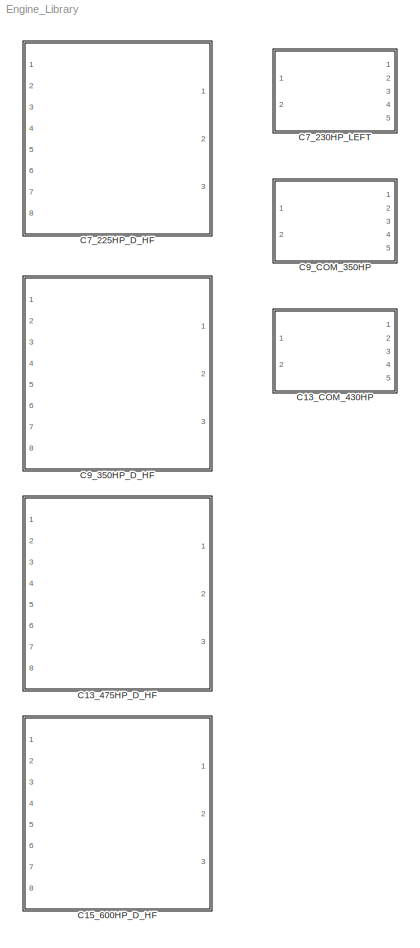
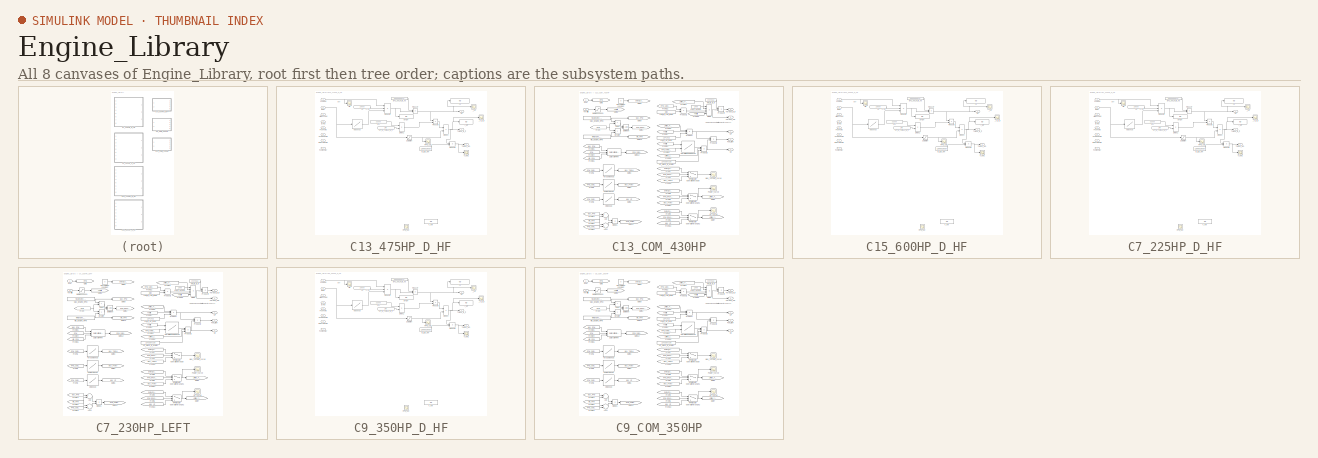
[diagram: thumbnail index - all 8 canvases of the model, root first then tree order]
MODEL Engine_Library
KIND model
CONFIG PostLoadFcn = %%% BEGIN C7_225HP_D_HF CODE %%%\n% Import the data from Excel for a lookup table\ndata = xlsread('Engine_Specification.xlsx', 'C7_225HP_D');\n% Row indices for lookup table\nbreakpoints1 = data(2:end,1)';\n% Column indices for lookup table\nbreakpoints2 = data(1,2:end);\n% Output values for lookup table\ntable_data = data(2:end,2:end);\nEngine_C7_225HP_D_RPM_raw = table_data(:,1);\nEngine_C7_225H...<+3797ch>
BLOCK [SubSystem] C13_475HP_D_HF
  FunctionWithSeparateData = off
  MaskHideContents = off
  MinAlgLoopOccurrences = off
  Opaque = off
  Ports = [8, 3]
  PropExecContextOutsideSubsystem = off
  RTWSystemCode = Auto
  RequestExecContextInheritance = off
  SID = 479
BLOCK [Inport] C13_475HP_D_HF/AirMassFlow
  IconDisplay = Port number
  Port = 3
  SID = 482
BLOCK [Inport] C13_475HP_D_HF/BARO
  IconDisplay = Port number
  Port = 4
  SID = 483
BLOCK [Display] C13_475HP_D_HF/BTU//hr
  Decimation = 1
  Lockdown = off
  Ports = [1]
  SID = 488
BLOCK [Constant] C13_475HP_D_HF/BTU_per_hr_to_hp
  SID = 489
  Value = 0.000393014779
BLOCK [Inport] C13_475HP_D_HF/CoolantTemp
  IconDisplay = Port number
  Port = 6
  SID = 485
BLOCK [Product] C13_475HP_D_HF/Divide1
  InputSameDT = off
  Inputs = */
  OutDataTypeStr = Inherit: Inherit via internal rule
  Ports = [2, 1]
  RndMeth = Floor
  SID = 490
  SaturateOnIntegerOverflow = off
BLOCK [Product] C13_475HP_D_HF/Divide2
  InputSameDT = off
  Inputs = */
  OutDataTypeStr = Inherit: Inherit via internal rule
  Ports = [2, 1]
  RndMeth = Floor
  SID = 491
  SaturateOnIntegerOverflow = off
BLOCK [Inport] C13_475HP_D_HF/FuelEnergy
  IconDisplay = Port number
  Port = 8
  SID = 487
BLOCK [Inport] C13_475HP_D_HF/FuelFlow
  IconDisplay = Port number
  SID = 480
BLOCK [Inport] C13_475HP_D_HF/FuelTemp
  IconDisplay = Port number
  Port = 5
  SID = 484
BLOCK [Outport] C13_475HP_D_HF/HP
  IconDisplay = Port number
  Port = 3
  SID = 513
BLOCK [Constant] C13_475HP_D_HF/HP_to_Torque_lb_ft
  SID = 492
  Value = 2*pi
BLOCK [Constant] C13_475HP_D_HF/Hu
  SID = 493
  Value = 18500
BLOCK [Inport] C13_475HP_D_HF/IntakeAirTemp
  IconDisplay = Port number
  Port = 7
  SID = 486
BLOCK [Lookup] C13_475HP_D_HF/Ne lookup
  InputValues = Engine_C13_475HP_D_RPM_raw
  SID = 494
  SaturateOnIntegerOverflow = off
  Table = Engine_C13_475HP_D_ne_raw
BLOCK [Constant] C13_475HP_D_HF/Ne1
  SID = 495
  Value = 33000
BLOCK [Product] C13_475HP_D_HF/Product6
  InputSameDT = off
  Inputs = 3
  OutDataTypeStr = Inherit: Inherit via internal rule
  Ports = [3, 1]
  SID = 496
  SaturateOnIntegerOverflow = off
BLOCK [Product] C13_475HP_D_HF/Product7
  InputSameDT = off
  OutDataTypeStr = Inherit: Inherit via internal rule
  Ports = [2, 1]
  SID = 497
  SaturateOnIntegerOverflow = off
BLOCK [Product] C13_475HP_D_HF/Product8
  InputSameDT = off
  OutDataTypeStr = Inherit: Inherit via internal rule
  Ports = [2, 1]
  SID = 498
  SaturateOnIntegerOverflow = off
BLOCK [Product] C13_475HP_D_HF/Product9
  InputSameDT = off
  OutDataTypeStr = Inherit: Inherit via internal rule
  Ports = [2, 1]
  SID = 499
  SaturateOnIntegerOverflow = off
BLOCK [Inport] C13_475HP_D_HF/RPM
  IconDisplay = Port number
  Port = 2
  SID = 481
BLOCK [Scope] C13_475HP_D_HF/RPM_Sat
  DataFormat = StructureWithTime
  Floating = off
  NumInputPorts = 1
  Ports = [1]
  SID = 500
  SampleTime = 0
  SaveName = ScopeData4
  TimeRange = 100
  ZoomMode = yonly
BLOCK [Scope] C13_475HP_D_HF/RPM_Sat1
  DataFormat = StructureWithTime
  Floating = off
  NumInputPorts = 1
  Ports = [1]
  SID = 501
  SampleTime = 0
  SaveName = ScopeData7
  TimeRange = 100
  ZoomMode = yonly
BLOCK [Saturate] C13_475HP_D_HF/Saturation
  InputPortMap = u0
  LowerLimit = 600
  Ports = [1, 1]
  SID = 502
  UpperLimit = 2100
BLOCK [Display] C13_475HP_D_HF/T_Nm
  Decimation = 1
  Lockdown = off
  Ports = [1]
  SID = 503
BLOCK [Scope] C13_475HP_D_HF/T_Nm1
  DataFormat = StructureWithTime
  Floating = off
  NumInputPorts = 1
  Ports = [1]
  SID = 504
  SampleTime = 0
  SaveName = ScopeData6
  TimeRange = 100
  ZoomMode = yonly
BLOCK [Display] C13_475HP_D_HF/T_lb-ft
  Decimation = 1
  Lockdown = off
  Ports = [1]
  SID = 505
BLOCK [Outport] C13_475HP_D_HF/Torque_Nm
  IconDisplay = Port number
  SID = 511
BLOCK [Outport] C13_475HP_D_HF/Torque_lb_ft
  IconDisplay = Port number
  Port = 2
  SID = 512
BLOCK [Scope] C13_475HP_D_HF/_T_lb_ft
  DataFormat = StructureWithTime
  Floating = off
  NumInputPorts = 1
  Ports = [1]
  SID = 506
  SampleTime = 0
  SaveName = ScopeData5
  ZoomMode = yonly
BLOCK [Scope] C13_475HP_D_HF/_hp
  DataFormat = StructureWithTime
  Floating = off
  NumInputPorts = 1
  Ports = [1]
  SID = 507
  SampleTime = 0
  SaveName = ScopeData3
BLOCK [Display] C13_475HP_D_HF/hp
  Decimation = 1
  Lockdown = off
  Ports = [1]
  SID = 508
BLOCK [Constant] C13_475HP_D_HF/lb_ft_to_Nm
  SID = 509
  Value = 1.355818039
BLOCK [Scope] C13_475HP_D_HF/mf1
  DataFormat = StructureWithTime
  Floating = off
  NumInputPorts = 1
  Ports = [1]
  SID = 510
  SampleTime = 0
  SaveName = ScopeData8
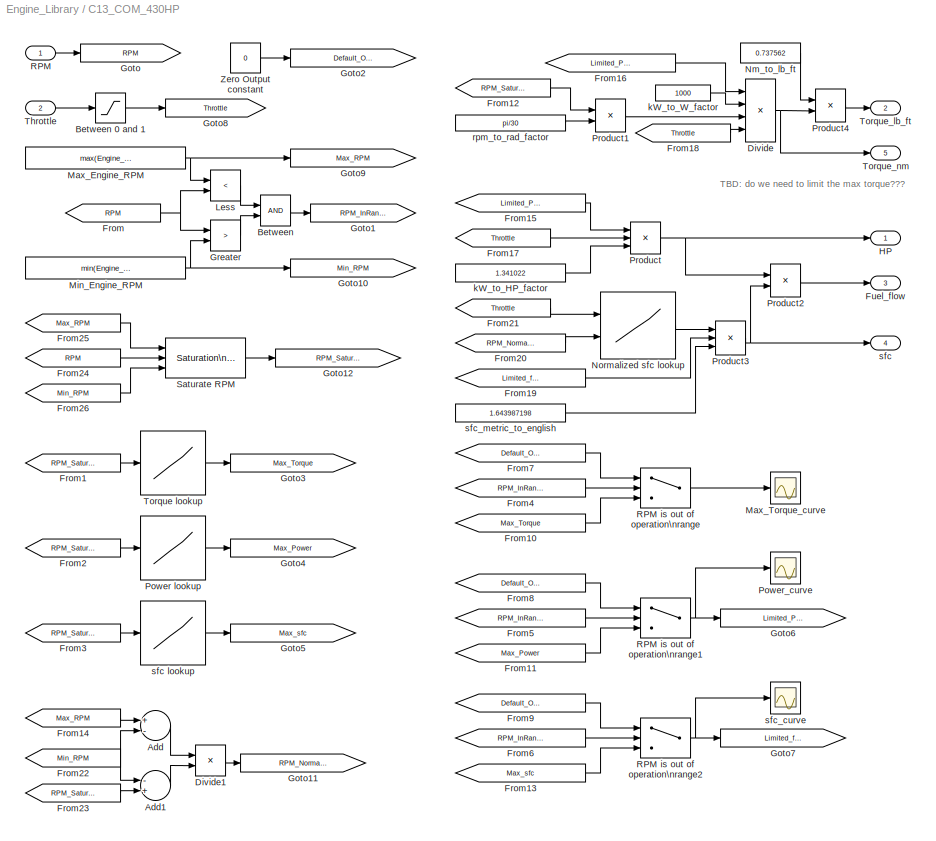
BLOCK [SubSystem] C13_COM_430HP
  FunctionWithSeparateData = off
  MaskHideContents = off
  MinAlgLoopOccurrences = off
  Opaque = off
  Ports = [2, 5]
  PropExecContextOutsideSubsystem = off
  RTWSystemCode = Auto
  RequestExecContextInheritance = off
  SID = 161
BLOCK [Sum] C13_COM_430HP/Add
  InputSameDT = off
  Inputs = +-
  OutDataTypeStr = Inherit: Inherit via internal rule
  Ports = [2, 1]
  SID = 164
  SaturateOnIntegerOverflow = off
BLOCK [Sum] C13_COM_430HP/Add1
  InputSameDT = off
  Inputs = -+
  OutDataTypeStr = Inherit: Inherit via internal rule
  Ports = [2, 1]
  SID = 165
  SaturateOnIntegerOverflow = off
BLOCK [Logic] C13_COM_430HP/Between
  AllPortsSameDT = off
  OutDataTypeStr = boolean
  Ports = [2, 1]
  SID = 166
BLOCK [Saturate] C13_COM_430HP/Between 0 and 1
  InputPortMap = u0
  LowerLimit = 0
  Ports = [1, 1]
  SID = 167
  UpperLimit = 1
BLOCK [Product] C13_COM_430HP/Divide
  InputSameDT = off
  Inputs = **/*
  OutDataTypeStr = Inherit: Inherit via internal rule
  Ports = [4, 1]
  RndMeth = Floor
  SID = 168
  SaturateOnIntegerOverflow = off
BLOCK [Product] C13_COM_430HP/Divide1
  InputSameDT = off
  Inputs = /*
  OutDataTypeStr = Inherit: Inherit via internal rule
  Ports = [2, 1]
  RndMeth = Floor
  SID = 169
  SaturateOnIntegerOverflow = off
BLOCK [From] C13_COM_430HP/From
  GotoTag = RPM
  SID = 170
BLOCK [From] C13_COM_430HP/From1
  GotoTag = RPM_Saturated
  SID = 171
BLOCK [From] C13_COM_430HP/From10
  GotoTag = Max_Torque
  SID = 172
BLOCK [From] C13_COM_430HP/From11
  GotoTag = Max_Power
  SID = 173
BLOCK [From] C13_COM_430HP/From12
  GotoTag = RPM_Saturated
  SID = 174
BLOCK [From] C13_COM_430HP/From13
  GotoTag = Max_sfc
  SID = 175
BLOCK [From] C13_COM_430HP/From14
  GotoTag = Max_RPM
  SID = 176
BLOCK [From] C13_COM_430HP/From15
  GotoTag = Limited_Power
  SID = 177
BLOCK [From] C13_COM_430HP/From16
  GotoTag = Limited_Power
  SID = 178
BLOCK [From] C13_COM_430HP/From17
  GotoTag = Throttle
  SID = 179
BLOCK [From] C13_COM_430HP/From18
  GotoTag = Throttle
  SID = 180
BLOCK [From] C13_COM_430HP/From19
  GotoTag = Limited_full_load_sfc
  SID = 181
BLOCK [From] C13_COM_430HP/From2
  GotoTag = RPM_Saturated
  SID = 182
BLOCK [From] C13_COM_430HP/From20
  GotoTag = RPM_Normalized
  SID = 183
BLOCK [From] C13_COM_430HP/From21
  GotoTag = Throttle
  SID = 184
BLOCK [From] C13_COM_430HP/From22
  GotoTag = Min_RPM
  SID = 185
BLOCK [From] C13_COM_430HP/From23
  GotoTag = RPM_Saturated
  SID = 186
BLOCK [From] C13_COM_430HP/From24
  GotoTag = RPM
  SID = 187
BLOCK [From] C13_COM_430HP/From25
  GotoTag = Max_RPM
  SID = 188
BLOCK [From] C13_COM_430HP/From26
  GotoTag = Min_RPM
  SID = 189
BLOCK [From] C13_COM_430HP/From3
  GotoTag = RPM_Saturated
  SID = 190
BLOCK [From] C13_COM_430HP/From4
  GotoTag = RPM_InRange
  SID = 191
BLOCK [From] C13_COM_430HP/From5
  GotoTag = RPM_InRange
  SID = 192
BLOCK [From] C13_COM_430HP/From6
  GotoTag = RPM_InRange
  SID = 193
BLOCK [From] C13_COM_430HP/From7
  GotoTag = Default_Output
  SID = 194
BLOCK [From] C13_COM_430HP/From8
  GotoTag = Default_Output
  SID = 195
BLOCK [From] C13_COM_430HP/From9
  GotoTag = Default_Output
  SID = 196
BLOCK [Outport] C13_COM_430HP/Fuel_flow
  IconDisplay = Port number
  Port = 3
  SID = 238
BLOCK [Goto] C13_COM_430HP/Goto
  GotoTag = RPM
  SID = 197
  TagVisibility = local
BLOCK [Goto] C13_COM_430HP/Goto1
  GotoTag = RPM_InRange
  SID = 198
  TagVisibility = local
BLOCK [Goto] C13_COM_430HP/Goto10
  GotoTag = Min_RPM
  SID = 199
  TagVisibility = local
BLOCK [Goto] C13_COM_430HP/Goto11
  GotoTag = RPM_Normalized
  SID = 200
  TagVisibility = local
BLOCK [Goto] C13_COM_430HP/Goto12
  GotoTag = RPM_Saturated
  SID = 201
  TagVisibility = local
BLOCK [Goto] C13_COM_430HP/Goto2
  GotoTag = Default_Output
  SID = 202
  TagVisibility = local
BLOCK [Goto] C13_COM_430HP/Goto3
  GotoTag = Max_Torque
  SID = 203
  TagVisibility = local
BLOCK [Goto] C13_COM_430HP/Goto4
  GotoTag = Max_Power
  SID = 204
  TagVisibility = local
BLOCK [Goto] C13_COM_430HP/Goto5
  GotoTag = Max_sfc
  SID = 205
  TagVisibility = local
BLOCK [Goto] C13_COM_430HP/Goto6
  GotoTag = Limited_Power
  SID = 206
  TagVisibility = local
BLOCK [Goto] C13_COM_430HP/Goto7
  GotoTag = Limited_full_load_sfc
  SID = 207
  TagVisibility = local
BLOCK [Goto] C13_COM_430HP/Goto8
  GotoTag = Throttle
  SID = 208
  TagVisibility = local
BLOCK [Goto] C13_COM_430HP/Goto9
  GotoTag = Max_RPM
  SID = 209
  TagVisibility = local
BLOCK [RelationalOperator] C13_COM_430HP/Greater
  InputSameDT = off
  Operator = >
  OutDataTypeStr = boolean
  Ports = [2, 1]
  SID = 210
BLOCK [Outport] C13_COM_430HP/HP
  IconDisplay = Port number
  SID = 236
BLOCK [RelationalOperator] C13_COM_430HP/Less
  InputSameDT = off
  Operator = <
  OutDataTypeStr = boolean
  Ports = [2, 1]
  SID = 211
BLOCK [Constant] C13_COM_430HP/Max_Engine_RPM
  SID = 212
  Value = max(Engine_C13_COM_430HP_RPM_raw)
BLOCK [Scope] C13_COM_430HP/Max_Torque_curve
  DataFormat = StructureWithTime
  Floating = off
  NumInputPorts = 1
  Ports = [1]
  SID = 213
  SampleTime = 0
  TimeRange = 10
  YMax = 1000
  YMin = 500
BLOCK [Constant] C13_COM_430HP/Min_Engine_RPM
  SID = 214
  Value = min(Engine_C13_COM_430HP_RPM_raw)
BLOCK [Constant] C13_COM_430HP/Nm_to_lb_ft
  SID = 215
  Value = 0.737562
BLOCK [Lookup2D] C13_COM_430HP/Normalized sfc lookup
  ColumnIndex = [0,0.25,0.5,0.75,1]
  InputSameDT = off
  LookUpMeth = Interpolation-Use End Values
  RowIndex = [0,0.25,0.5,0.75,1]
  SID = 216
  SaturateOnIntegerOverflow = off
  Table = [ 1.3562, 1.1898, 1.0652, 1.0227, 1.0000; 1.3918, 1.2098, 1.0718, 1.0316, 1.0000; 1.4074, 1.2248, 1.0865, 1.0461, 1.0000; 1.4502, 1.2557, 1.1108, 1.0540, 1.0000; 1.4127, 1.2404, 1.1120, 1.0628, 1.0000]'  <repeated x3 — deduplicated; at blocks: Normalized sfc lookup>
BLOCK [Lookup] C13_COM_430HP/Power lookup
  InputValues = Engine_C13_COM_430HP_RPM_raw
  SID = 217
  SaturateOnIntegerOverflow = off
  Table = Engine_C13_COM_430HP_Power_raw
BLOCK [Scope] C13_COM_430HP/Power_curve
  DataFormat = StructureWithTime
  Floating = off
  NumInputPorts = 1
  Ports = [1]
  SID = 218
  SampleTime = 0
  SaveName = ScopeData1
  TimeRange = 10
  YMax = 250
  YMin = 50
BLOCK [Product] C13_COM_430HP/Product
  InputSameDT = off
  Inputs = 3
  OutDataTypeStr = Inherit: Inherit via internal rule
  Ports = [3, 1]
  SID = 219
  SaturateOnIntegerOverflow = off
BLOCK [Product] C13_COM_430HP/Product1
  InputSameDT = off
  OutDataTypeStr = Inherit: Inherit via internal rule
  Ports = [2, 1]
  SID = 220
  SaturateOnIntegerOverflow = off
BLOCK [Product] C13_COM_430HP/Product2
  InputSameDT = off
  OutDataTypeStr = Inherit: Inherit via internal rule
  Ports = [2, 1]
  SID = 221
  SaturateOnIntegerOverflow = off
BLOCK [Product] C13_COM_430HP/Product3
  InputSameDT = off
  Inputs = 3
  OutDataTypeStr = Inherit: Inherit via internal rule
  Ports = [3, 1]
  SID = 222
  SaturateOnIntegerOverflow = off
BLOCK [Product] C13_COM_430HP/Product4
  InputSameDT = off
  OutDataTypeStr = Inherit: Inherit via internal rule
  Ports = [2, 1]
  SID = 223
  SaturateOnIntegerOverflow = off
BLOCK [Inport] C13_COM_430HP/RPM
  IconDisplay = Port number
  SID = 162
BLOCK [Switch] C13_COM_430HP/RPM is out of operation\nrange
  InputSameDT = off
  SID = 224
  SaturateOnIntegerOverflow = off
BLOCK [Switch] C13_COM_430HP/RPM is out of operation\nrange1
  InputSameDT = off
  SID = 225
  SaturateOnIntegerOverflow = off
BLOCK [Switch] C13_COM_430HP/RPM is out of operation\nrange2
  InputSameDT = off
  SID = 226
  SaturateOnIntegerOverflow = off
BLOCK [Reference] C13_COM_430HP/Saturate RPM  REF=simulink/Discontinuities/Saturation\nDynamic
  DoSatur = off
  FunctionWithSeparateData = off
  GeneratePreprocessorConditionals = off
  LockScale = off
  OutDataType = fixdt(1, 16)
  OutDataTypeStr = Inherit: Same as second input
  OutMax = []
  OutMin = []
  OutScaling = 2^-10
  OutputDataTypeScalingMode = Same as second input
  Ports = [3, 1]
  RTWMemSecDataConstants = Inherit from model
  RTWMemSecDataInternal = Inherit from model
  RTWMemSecDataParameters = Inherit from model
  RTWMemSecFuncExecute = Inherit from model
  RTWMemSecFuncInitTerm = Inherit from model
  RndMeth = Floor
  SID = 227
  ShowPortLabels = FromPortIcon
  SourceBlock = simulink/Discontinuities/Saturation\nDynamic
  SourceType = Saturation Dynamic
  SystemSampleTime = -1
BLOCK [Inport] C13_COM_430HP/Throttle
  IconDisplay = Port number
  Port = 2
  SID = 163
BLOCK [Lookup] C13_COM_430HP/Torque lookup
  InputValues = Engine_C13_COM_430HP_RPM_raw
  SID = 228
  SaturateOnIntegerOverflow = off
  Table = Engine_C13_COM_430HP_Torque_raw
BLOCK [Outport] C13_COM_430HP/Torque_lb_ft
  IconDisplay = Port number
  Port = 2
  SID = 237
BLOCK [Outport] C13_COM_430HP/Torque_nm
  IconDisplay = Port number
  Port = 5
  SID = 240
BLOCK [Constant] C13_COM_430HP/Zero Output constant
  SID = 229
  Value = 0
BLOCK [Constant] C13_COM_430HP/kW_to_HP_factor
  SID = 230
  Value = 1.341022
BLOCK [Constant] C13_COM_430HP/kW_to_W_factor
  SID = 231
  Value = 1000
BLOCK [Constant] C13_COM_430HP/rpm_to_rad_factor
  SID = 232
  Value = pi/30
BLOCK [Outport] C13_COM_430HP/sfc
  IconDisplay = Port number
  Port = 4
  SID = 239
BLOCK [Lookup] C13_COM_430HP/sfc lookup
  InputValues = Engine_C13_COM_430HP_RPM_raw
  SID = 233
  SaturateOnIntegerOverflow = off
  Table = Engine_C13_COM_430HP_sfc_raw
BLOCK [Scope] C13_COM_430HP/sfc_curve
  DataFormat = StructureWithTime
  Floating = off
  NumInputPorts = 1
  Ports = [1]
  SID = 234
  SampleTime = 0
  SaveName = ScopeData2
  TimeRange = 10
  YMax = 120
  YMin = 40
BLOCK [Constant] C13_COM_430HP/sfc_metric_to_english
  SID = 235
  Value = 1.643987198
BLOCK [SubSystem] C15_600HP_D_HF
  FunctionWithSeparateData = off
  MaskHideContents = off
  MinAlgLoopOccurrences = off
  Opaque = off
  Ports = [8, 3]
  PropExecContextOutsideSubsystem = off
  RTWSystemCode = Auto
  RequestExecContextInheritance = off
  SID = 514
BLOCK [Inport] C15_600HP_D_HF/AirMassFlow
  IconDisplay = Port number
  Port = 3
  SID = 517
BLOCK [Inport] C15_600HP_D_HF/BARO
  IconDisplay = Port number
  Port = 4
  SID = 518
BLOCK [Display] C15_600HP_D_HF/BTU//hr
  Decimation = 1
  Lockdown = off
  Ports = [1]
  SID = 523
BLOCK [Constant] C15_600HP_D_HF/BTU_per_hr_to_hp
  SID = 524
  Value = 0.000393014779
BLOCK [Inport] C15_600HP_D_HF/CoolantTemp
  IconDisplay = Port number
  Port = 6
  SID = 520
BLOCK [Product] C15_600HP_D_HF/Divide1
  InputSameDT = off
  Inputs = */
  OutDataTypeStr = Inherit: Inherit via internal rule
  Ports = [2, 1]
  RndMeth = Floor
  SID = 525
  SaturateOnIntegerOverflow = off
BLOCK [Product] C15_600HP_D_HF/Divide2
  InputSameDT = off
  Inputs = */
  OutDataTypeStr = Inherit: Inherit via internal rule
  Ports = [2, 1]
  RndMeth = Floor
  SID = 526
  SaturateOnIntegerOverflow = off
BLOCK [Inport] C15_600HP_D_HF/FuelEnergy
  IconDisplay = Port number
  Port = 8
  SID = 522
BLOCK [Inport] C15_600HP_D_HF/FuelFlow
  IconDisplay = Port number
  SID = 515
BLOCK [Inport] C15_600HP_D_HF/FuelTemp
  IconDisplay = Port number
  Port = 5
  SID = 519
BLOCK [Outport] C15_600HP_D_HF/HP
  IconDisplay = Port number
  Port = 3
  SID = 548
BLOCK [Constant] C15_600HP_D_HF/HP_to_Torque_lb_ft
  SID = 527
  Value = 2*pi
BLOCK [Constant] C15_600HP_D_HF/Hu
  SID = 528
  Value = 18500
BLOCK [Inport] C15_600HP_D_HF/IntakeAirTemp
  IconDisplay = Port number
  Port = 7
  SID = 521
BLOCK [Lookup] C15_600HP_D_HF/Ne lookup
  InputValues = Engine_C15_600HP_D_RPM_raw
  SID = 529
  SaturateOnIntegerOverflow = off
  Table = Engine_C15_600HP_D_ne_raw
BLOCK [Constant] C15_600HP_D_HF/Ne1
  SID = 530
  Value = 33000
BLOCK [Product] C15_600HP_D_HF/Product6
  InputSameDT = off
  Inputs = 3
  OutDataTypeStr = Inherit: Inherit via internal rule
  Ports = [3, 1]
  SID = 531
  SaturateOnIntegerOverflow = off
BLOCK [Product] C15_600HP_D_HF/Product7
  InputSameDT = off
  OutDataTypeStr = Inherit: Inherit via internal rule
  Ports = [2, 1]
  SID = 532
  SaturateOnIntegerOverflow = off
BLOCK [Product] C15_600HP_D_HF/Product8
  InputSameDT = off
  OutDataTypeStr = Inherit: Inherit via internal rule
  Ports = [2, 1]
  SID = 533
  SaturateOnIntegerOverflow = off
BLOCK [Product] C15_600HP_D_HF/Product9
  InputSameDT = off
  OutDataTypeStr = Inherit: Inherit via internal rule
  Ports = [2, 1]
  SID = 534
  SaturateOnIntegerOverflow = off
BLOCK [Inport] C15_600HP_D_HF/RPM
  IconDisplay = Port number
  Port = 2
  SID = 516
BLOCK [Scope] C15_600HP_D_HF/RPM_Sat
  DataFormat = StructureWithTime
  Floating = off
  NumInputPorts = 1
  Ports = [1]
  SID = 535
  SampleTime = 0
  SaveName = ScopeData4
  TimeRange = 100
  ZoomMode = yonly
BLOCK [Scope] C15_600HP_D_HF/RPM_Sat1
  DataFormat = StructureWithTime
  Floating = off
  NumInputPorts = 1
  Ports = [1]
  SID = 536
  SampleTime = 0
  SaveName = ScopeData7
  TimeRange = 100
  ZoomMode = yonly
BLOCK [Saturate] C15_600HP_D_HF/Saturation
  InputPortMap = u0
  LowerLimit = 600
  Ports = [1, 1]
  SID = 537
  UpperLimit = 2100
BLOCK [Display] C15_600HP_D_HF/T_Nm
  Decimation = 1
  Lockdown = off
  Ports = [1]
  SID = 538
BLOCK [Scope] C15_600HP_D_HF/T_Nm1
  DataFormat = StructureWithTime
  Floating = off
  NumInputPorts = 1
  Ports = [1]
  SID = 539
  SampleTime = 0
  SaveName = ScopeData6
  TimeRange = 100
  ZoomMode = yonly
BLOCK [Display] C15_600HP_D_HF/T_lb-ft
  Decimation = 1
  Lockdown = off
  Ports = [1]
  SID = 540
BLOCK [Outport] C15_600HP_D_HF/Torque_Nm
  IconDisplay = Port number
  SID = 546
BLOCK [Outport] C15_600HP_D_HF/Torque_lb_ft
  IconDisplay = Port number
  Port = 2
  SID = 547
BLOCK [Scope] C15_600HP_D_HF/_T_lb_ft
  DataFormat = StructureWithTime
  Floating = off
  NumInputPorts = 1
  Ports = [1]
  SID = 541
  SampleTime = 0
  SaveName = ScopeData5
  ZoomMode = yonly
BLOCK [Scope] C15_600HP_D_HF/_hp
  DataFormat = StructureWithTime
  Floating = off
  NumInputPorts = 1
  Ports = [1]
  SID = 542
  SampleTime = 0
  SaveName = ScopeData3
BLOCK [Display] C15_600HP_D_HF/hp
  Decimation = 1
  Lockdown = off
  Ports = [1]
  SID = 543
BLOCK [Constant] C15_600HP_D_HF/lb_ft_to_Nm
  SID = 544
  Value = 1.355818039
BLOCK [Scope] C15_600HP_D_HF/mf1
  DataFormat = StructureWithTime
  Floating = off
  NumInputPorts = 1
  Ports = [1]
  SID = 545
  SampleTime = 0
  SaveName = ScopeData8
BLOCK [SubSystem] C7_225HP_D_HF
  FunctionWithSeparateData = off
  MaskHideContents = off
  MinAlgLoopOccurrences = off
  Opaque = off
  Ports = [8, 3]
  PropExecContextOutsideSubsystem = off
  RTWSystemCode = Auto
  RequestExecContextInheritance = off
  SID = 334
BLOCK [Inport] C7_225HP_D_HF/AirMassFlow
  IconDisplay = Port number
  Port = 3
  SID = 337
BLOCK [Inport] C7_225HP_D_HF/BARO
  IconDisplay = Port number
  Port = 4
  SID = 338
BLOCK [Display] C7_225HP_D_HF/BTU//hr
  Decimation = 1
  Lockdown = off
  Ports = [1]
  SID = 390
BLOCK [Constant] C7_225HP_D_HF/BTU_per_hr_to_hp
  SID = 387
  Value = 0.000393014779
BLOCK [Inport] C7_225HP_D_HF/CoolantTemp
  IconDisplay = Port number
  Port = 6
  SID = 340
BLOCK [Product] C7_225HP_D_HF/Divide1
  InputSameDT = off
  Inputs = */
  OutDataTypeStr = Inherit: Inherit via internal rule
  Ports = [2, 1]
  RndMeth = Floor
  SID = 389
  SaturateOnIntegerOverflow = off
BLOCK [Product] C7_225HP_D_HF/Divide2
  InputSameDT = off
  Inputs = */
  OutDataTypeStr = Inherit: Inherit via internal rule
  Ports = [2, 1]
  RndMeth = Floor
  SID = 385
  SaturateOnIntegerOverflow = off
BLOCK [Inport] C7_225HP_D_HF/FuelEnergy
  IconDisplay = Port number
  Port = 8
  SID = 342
BLOCK [Inport] C7_225HP_D_HF/FuelFlow
  IconDisplay = Port number
  SID = 335
BLOCK [Inport] C7_225HP_D_HF/FuelTemp
  IconDisplay = Port number
  Port = 5
  SID = 339
BLOCK [Outport] C7_225HP_D_HF/HP
  IconDisplay = Port number
  Port = 3
  SID = 368
BLOCK [Constant] C7_225HP_D_HF/HP_to_Torque_lb_ft
  SID = 381
  Value = 2*pi
BLOCK [Constant] C7_225HP_D_HF/Hu
  SID = 378
  Value = 18500
BLOCK [Inport] C7_225HP_D_HF/IntakeAirTemp
  IconDisplay = Port number
  Port = 7
  SID = 341
BLOCK [Lookup] C7_225HP_D_HF/Ne lookup
  InputValues = Engine_C7_225HP_D_RPM_raw
  SID = 404
  SaturateOnIntegerOverflow = off
  Table = Engine_C7_225HP_D_ne_raw
BLOCK [Constant] C7_225HP_D_HF/Ne1
  SID = 384
  Value = 33000
BLOCK [Product] C7_225HP_D_HF/Product6
  InputSameDT = off
  Inputs = 3
  OutDataTypeStr = Inherit: Inherit via internal rule
  Ports = [3, 1]
  SID = 380
  SaturateOnIntegerOverflow = off
BLOCK [Product] C7_225HP_D_HF/Product7
  InputSameDT = off
  OutDataTypeStr = Inherit: Inherit via internal rule
  Ports = [2, 1]
  SID = 383
  SaturateOnIntegerOverflow = off
BLOCK [Product] C7_225HP_D_HF/Product8
  InputSameDT = off
  OutDataTypeStr = Inherit: Inherit via internal rule
  Ports = [2, 1]
  SID = 386
  SaturateOnIntegerOverflow = off
BLOCK [Product] C7_225HP_D_HF/Product9
  InputSameDT = off
  OutDataTypeStr = Inherit: Inherit via internal rule
  Ports = [2, 1]
  SID = 388
  SaturateOnIntegerOverflow = off
BLOCK [Inport] C7_225HP_D_HF/RPM
  IconDisplay = Port number
  Port = 2
  SID = 336
BLOCK [Scope] C7_225HP_D_HF/RPM_Sat
  DataFormat = StructureWithTime
  Floating = off
  NumInputPorts = 1
  Ports = [1]
  SID = 392
  SampleTime = 0
  SaveName = ScopeData4
  TimeRange = 100
  ZoomMode = yonly
BLOCK [Scope] C7_225HP_D_HF/RPM_Sat1
  DataFormat = StructureWithTime
  Floating = off
  NumInputPorts = 1
  Ports = [1]
  SID = 400
  SampleTime = 0
  SaveName = ScopeData7
  TimeRange = 100
  ZoomMode = yonly
BLOCK [Saturate] C7_225HP_D_HF/Saturation
  InputPortMap = u0
  LowerLimit = 600
  Ports = [1, 1]
  SID = 399
  UpperLimit = 2500
BLOCK [Display] C7_225HP_D_HF/T_Nm
  Decimation = 1
  Lockdown = off
  Ports = [1]
  SID = 396
BLOCK [Scope] C7_225HP_D_HF/T_Nm1
  DataFormat = StructureWithTime
  Floating = off
  NumInputPorts = 1
  Ports = [1]
  SID = 393
  SampleTime = 0
  SaveName = ScopeData6
  TimeRange = 100
  ZoomMode = yonly
BLOCK [Display] C7_225HP_D_HF/T_lb-ft
  Decimation = 1
  Lockdown = off
  Ports = [1]
  SID = 397
BLOCK [Outport] C7_225HP_D_HF/Torque_Nm
  IconDisplay = Port number
  SID = 373
BLOCK [Outport] C7_225HP_D_HF/Torque_lb_ft
  IconDisplay = Port number
  Port = 2
  SID = 369
BLOCK [Scope] C7_225HP_D_HF/_T_lb_ft
  DataFormat = StructureWithTime
  Floating = off
  NumInputPorts = 1
  Ports = [1]
  SID = 395
  SampleTime = 0
  SaveName = ScopeData5
  ZoomMode = yonly
BLOCK [Scope] C7_225HP_D_HF/_hp
  DataFormat = StructureWithTime
  Floating = off
  NumInputPorts = 1
  Ports = [1]
  SID = 394
  SampleTime = 0
  SaveName = ScopeData3
BLOCK [Display] C7_225HP_D_HF/hp
  Decimation = 1
  Lockdown = off
  Ports = [1]
  SID = 398
BLOCK [Constant] C7_225HP_D_HF/lb_ft_to_Nm
  SID = 382
  Value = 1.355818039
BLOCK [Scope] C7_225HP_D_HF/mf1
  DataFormat = StructureWithTime
  Floating = off
  NumInputPorts = 1
  Ports = [1]
  SID = 401
  SampleTime = 0
  SaveName = ScopeData8
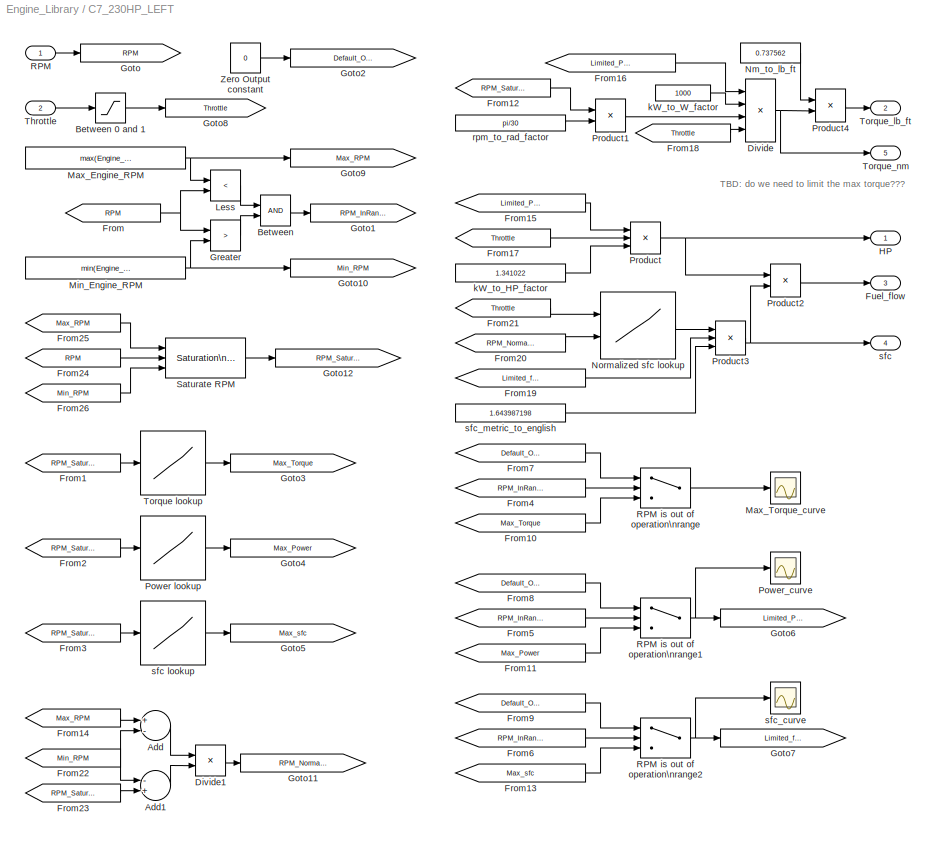
BLOCK [SubSystem] C7_230HP_LEFT
  FunctionWithSeparateData = off
  MaskHideContents = off
  MinAlgLoopOccurrences = off
  Opaque = off
  Ports = [2, 5]
  PropExecContextOutsideSubsystem = off
  RTWSystemCode = Auto
  RequestExecContextInheritance = off
  SID = 1
BLOCK [Sum] C7_230HP_LEFT/Add
  InputSameDT = off
  Inputs = +-
  OutDataTypeStr = Inherit: Inherit via internal rule
  Ports = [2, 1]
  SID = 4
  SaturateOnIntegerOverflow = off
BLOCK [Sum] C7_230HP_LEFT/Add1
  InputSameDT = off
  Inputs = -+
  OutDataTypeStr = Inherit: Inherit via internal rule
  Ports = [2, 1]
  SID = 5
  SaturateOnIntegerOverflow = off
BLOCK [Logic] C7_230HP_LEFT/Between
  AllPortsSameDT = off
  OutDataTypeStr = boolean
  Ports = [2, 1]
  SID = 6
BLOCK [Saturate] C7_230HP_LEFT/Between 0 and 1
  InputPortMap = u0
  LowerLimit = 0
  Ports = [1, 1]
  SID = 7
  UpperLimit = 1
BLOCK [Product] C7_230HP_LEFT/Divide
  InputSameDT = off
  Inputs = **/*
  OutDataTypeStr = Inherit: Inherit via internal rule
  Ports = [4, 1]
  RndMeth = Floor
  SID = 8
  SaturateOnIntegerOverflow = off
BLOCK [Product] C7_230HP_LEFT/Divide1
  InputSameDT = off
  Inputs = /*
  OutDataTypeStr = Inherit: Inherit via internal rule
  Ports = [2, 1]
  RndMeth = Floor
  SID = 9
  SaturateOnIntegerOverflow = off
BLOCK [From] C7_230HP_LEFT/From
  GotoTag = RPM
  SID = 10
BLOCK [From] C7_230HP_LEFT/From1
  GotoTag = RPM_Saturated
  SID = 11
BLOCK [From] C7_230HP_LEFT/From10
  GotoTag = Max_Torque
  SID = 12
BLOCK [From] C7_230HP_LEFT/From11
  GotoTag = Max_Power
  SID = 13
BLOCK [From] C7_230HP_LEFT/From12
  GotoTag = RPM_Saturated
  SID = 14
BLOCK [From] C7_230HP_LEFT/From13
  GotoTag = Max_sfc
  SID = 15
BLOCK [From] C7_230HP_LEFT/From14
  GotoTag = Max_RPM
  SID = 16
BLOCK [From] C7_230HP_LEFT/From15
  GotoTag = Limited_Power
  SID = 17
BLOCK [From] C7_230HP_LEFT/From16
  GotoTag = Limited_Power
  SID = 18
BLOCK [From] C7_230HP_LEFT/From17
  GotoTag = Throttle
  SID = 19
BLOCK [From] C7_230HP_LEFT/From18
  GotoTag = Throttle
  SID = 20
BLOCK [From] C7_230HP_LEFT/From19
  GotoTag = Limited_full_load_sfc
  SID = 21
BLOCK [From] C7_230HP_LEFT/From2
  GotoTag = RPM_Saturated
  SID = 22
BLOCK [From] C7_230HP_LEFT/From20
  GotoTag = RPM_Normalized
  SID = 23
BLOCK [From] C7_230HP_LEFT/From21
  GotoTag = Throttle
  SID = 24
BLOCK [From] C7_230HP_LEFT/From22
  GotoTag = Min_RPM
  SID = 25
BLOCK [From] C7_230HP_LEFT/From23
  GotoTag = RPM_Saturated
  SID = 26
BLOCK [From] C7_230HP_LEFT/From24
  GotoTag = RPM
  SID = 27
BLOCK [From] C7_230HP_LEFT/From25
  GotoTag = Max_RPM
  SID = 28
BLOCK [From] C7_230HP_LEFT/From26
  GotoTag = Min_RPM
  SID = 29
BLOCK [From] C7_230HP_LEFT/From3
  GotoTag = RPM_Saturated
  SID = 30
BLOCK [From] C7_230HP_LEFT/From4
  GotoTag = RPM_InRange
  SID = 31
BLOCK [From] C7_230HP_LEFT/From5
  GotoTag = RPM_InRange
  SID = 32
BLOCK [From] C7_230HP_LEFT/From6
  GotoTag = RPM_InRange
  SID = 33
BLOCK [From] C7_230HP_LEFT/From7
  GotoTag = Default_Output
  SID = 34
BLOCK [From] C7_230HP_LEFT/From8
  GotoTag = Default_Output
  SID = 35
BLOCK [From] C7_230HP_LEFT/From9
  GotoTag = Default_Output
  SID = 36
BLOCK [Outport] C7_230HP_LEFT/Fuel_flow
  IconDisplay = Port number
  Port = 3
  SID = 78
BLOCK [Goto] C7_230HP_LEFT/Goto
  GotoTag = RPM
  SID = 37
  TagVisibility = local
BLOCK [Goto] C7_230HP_LEFT/Goto1
  GotoTag = RPM_InRange
  SID = 38
  TagVisibility = local
BLOCK [Goto] C7_230HP_LEFT/Goto10
  GotoTag = Min_RPM
  SID = 39
  TagVisibility = local
BLOCK [Goto] C7_230HP_LEFT/Goto11
  GotoTag = RPM_Normalized
  SID = 40
  TagVisibility = local
BLOCK [Goto] C7_230HP_LEFT/Goto12
  GotoTag = RPM_Saturated
  SID = 41
  TagVisibility = local
BLOCK [Goto] C7_230HP_LEFT/Goto2
  GotoTag = Default_Output
  SID = 42
  TagVisibility = local
BLOCK [Goto] C7_230HP_LEFT/Goto3
  GotoTag = Max_Torque
  SID = 43
  TagVisibility = local
BLOCK [Goto] C7_230HP_LEFT/Goto4
  GotoTag = Max_Power
  SID = 44
  TagVisibility = local
BLOCK [Goto] C7_230HP_LEFT/Goto5
  GotoTag = Max_sfc
  SID = 45
  TagVisibility = local
BLOCK [Goto] C7_230HP_LEFT/Goto6
  GotoTag = Limited_Power
  SID = 46
  TagVisibility = local
BLOCK [Goto] C7_230HP_LEFT/Goto7
  GotoTag = Limited_full_load_sfc
  SID = 47
  TagVisibility = local
BLOCK [Goto] C7_230HP_LEFT/Goto8
  GotoTag = Throttle
  SID = 48
  TagVisibility = local
BLOCK [Goto] C7_230HP_LEFT/Goto9
  GotoTag = Max_RPM
  SID = 49
  TagVisibility = local
BLOCK [RelationalOperator] C7_230HP_LEFT/Greater
  InputSameDT = off
  Operator = >
  OutDataTypeStr = boolean
  Ports = [2, 1]
  SID = 50
BLOCK [Outport] C7_230HP_LEFT/HP
  IconDisplay = Port number
  SID = 76
BLOCK [RelationalOperator] C7_230HP_LEFT/Less
  InputSameDT = off
  Operator = <
  OutDataTypeStr = boolean
  Ports = [2, 1]
  SID = 51
BLOCK [Constant] C7_230HP_LEFT/Max_Engine_RPM
  SID = 52
  Value = max(Engine_C7_230HP_LEFT_RPM_raw)
BLOCK [Scope] C7_230HP_LEFT/Max_Torque_curve
  DataFormat = StructureWithTime
  Floating = off
  NumInputPorts = 1
  Ports = [1]
  SID = 53
  SampleTime = 0
  TimeRange = 10
  YMax = 1000
  YMin = 500
BLOCK [Constant] C7_230HP_LEFT/Min_Engine_RPM
  SID = 54
  Value = min(Engine_C7_230HP_LEFT_RPM_raw)
BLOCK [Constant] C7_230HP_LEFT/Nm_to_lb_ft
  SID = 55
  Value = 0.737562
BLOCK [Lookup2D] C7_230HP_LEFT/Normalized sfc lookup
  ColumnIndex = [0,0.25,0.5,0.75,1]
  InputSameDT = off
  LookUpMeth = Interpolation-Use End Values
  RowIndex = [0,0.25,0.5,0.75,1]
  SID = 56
  SaturateOnIntegerOverflow = off
BLOCK [Lookup] C7_230HP_LEFT/Power lookup
  InputValues = Engine_C7_230HP_LEFT_RPM_raw
  SID = 57
  SaturateOnIntegerOverflow = off
  Table = Engine_C7_230HP_LEFT_Power_raw
BLOCK [Scope] C7_230HP_LEFT/Power_curve
  DataFormat = StructureWithTime
  Floating = off
  NumInputPorts = 1
  Ports = [1]
  SID = 58
  SampleTime = 0
  SaveName = ScopeData1
  TimeRange = 10
  YMax = 250
  YMin = 50
BLOCK [Product] C7_230HP_LEFT/Product
  InputSameDT = off
  Inputs = 3
  OutDataTypeStr = Inherit: Inherit via internal rule
  Ports = [3, 1]
  SID = 59
  SaturateOnIntegerOverflow = off
BLOCK [Product] C7_230HP_LEFT/Product1
  InputSameDT = off
  OutDataTypeStr = Inherit: Inherit via internal rule
  Ports = [2, 1]
  SID = 60
  SaturateOnIntegerOverflow = off
BLOCK [Product] C7_230HP_LEFT/Product2
  InputSameDT = off
  OutDataTypeStr = Inherit: Inherit via internal rule
  Ports = [2, 1]
  SID = 61
  SaturateOnIntegerOverflow = off
BLOCK [Product] C7_230HP_LEFT/Product3
  InputSameDT = off
  Inputs = 3
  OutDataTypeStr = Inherit: Inherit via internal rule
  Ports = [3, 1]
  SID = 62
  SaturateOnIntegerOverflow = off
BLOCK [Product] C7_230HP_LEFT/Product4
  InputSameDT = off
  OutDataTypeStr = Inherit: Inherit via internal rule
  Ports = [2, 1]
  SID = 63
  SaturateOnIntegerOverflow = off
BLOCK [Inport] C7_230HP_LEFT/RPM
  IconDisplay = Port number
  SID = 2
BLOCK [Switch] C7_230HP_LEFT/RPM is out of operation\nrange
  InputSameDT = off
  SID = 64
  SaturateOnIntegerOverflow = off
BLOCK [Switch] C7_230HP_LEFT/RPM is out of operation\nrange1
  InputSameDT = off
  SID = 65
  SaturateOnIntegerOverflow = off
BLOCK [Switch] C7_230HP_LEFT/RPM is out of operation\nrange2
  InputSameDT = off
  SID = 66
  SaturateOnIntegerOverflow = off
BLOCK [Reference] C7_230HP_LEFT/Saturate RPM  REF=simulink/Discontinuities/Saturation\nDynamic
  DoSatur = off
  FunctionWithSeparateData = off
  GeneratePreprocessorConditionals = off
  LockScale = off
  OutDataType = fixdt(1, 16)
  OutDataTypeStr = Inherit: Same as second input
  OutMax = []
  OutMin = []
  OutScaling = 2^-10
  OutputDataTypeScalingMode = Same as second input
  Ports = [3, 1]
  RTWMemSecDataConstants = Inherit from model
  RTWMemSecDataInternal = Inherit from model
  RTWMemSecDataParameters = Inherit from model
  RTWMemSecFuncExecute = Inherit from model
  RTWMemSecFuncInitTerm = Inherit from model
  RndMeth = Floor
  SID = 67
  ShowPortLabels = FromPortIcon
  SourceBlock = simulink/Discontinuities/Saturation\nDynamic
  SourceType = Saturation Dynamic
  SystemSampleTime = -1
BLOCK [Inport] C7_230HP_LEFT/Throttle
  IconDisplay = Port number
  Port = 2
  SID = 3
BLOCK [Lookup] C7_230HP_LEFT/Torque lookup
  InputValues = Engine_C7_230HP_LEFT_RPM_raw
  SID = 68
  SaturateOnIntegerOverflow = off
  Table = Engine_C7_230HP_LEFT_Torque_raw
BLOCK [Outport] C7_230HP_LEFT/Torque_lb_ft
  IconDisplay = Port number
  Port = 2
  SID = 77
BLOCK [Outport] C7_230HP_LEFT/Torque_nm
  IconDisplay = Port number
  Port = 5
  SID = 80
BLOCK [Constant] C7_230HP_LEFT/Zero Output constant
  SID = 69
  Value = 0
BLOCK [Constant] C7_230HP_LEFT/kW_to_HP_factor
  SID = 70
  Value = 1.341022
BLOCK [Constant] C7_230HP_LEFT/kW_to_W_factor
  SID = 71
  Value = 1000
BLOCK [Constant] C7_230HP_LEFT/rpm_to_rad_factor
  SID = 72
  Value = pi/30
BLOCK [Outport] C7_230HP_LEFT/sfc
  IconDisplay = Port number
  Port = 4
  SID = 79
BLOCK [Lookup] C7_230HP_LEFT/sfc lookup
  InputValues = Engine_C7_230HP_LEFT_RPM_raw
  SID = 73
  SaturateOnIntegerOverflow = off
  Table = Engine_C7_230HP_LEFT_sfc_raw
BLOCK [Scope] C7_230HP_LEFT/sfc_curve
  DataFormat = StructureWithTime
  Floating = off
  NumInputPorts = 1
  Ports = [1]
  SID = 74
  SampleTime = 0
  SaveName = ScopeData2
  TimeRange = 10
  YMax = 120
  YMin = 40
BLOCK [Constant] C7_230HP_LEFT/sfc_metric_to_english
  SID = 75
  Value = 1.643987198
BLOCK [SubSystem] C9_350HP_D_HF
  FunctionWithSeparateData = off
  MaskHideContents = off
  MinAlgLoopOccurrences = off
  Opaque = off
  Ports = [8, 3]
  PropExecContextOutsideSubsystem = off
  RTWSystemCode = Auto
  RequestExecContextInheritance = off
  SID = 443
BLOCK [Inport] C9_350HP_D_HF/AirMassFlow
  IconDisplay = Port number
  Port = 3
  SID = 446
BLOCK [Inport] C9_350HP_D_HF/BARO
  IconDisplay = Port number
  Port = 4
  SID = 447
BLOCK [Display] C9_350HP_D_HF/BTU//hr
  Decimation = 1
  Lockdown = off
  Ports = [1]
  SID = 453
BLOCK [Constant] C9_350HP_D_HF/BTU_per_hr_to_hp
  SID = 454
  Value = 0.000393014779
BLOCK [Inport] C9_350HP_D_HF/CoolantTemp
  IconDisplay = Port number
  Port = 6
  SID = 449
BLOCK [Product] C9_350HP_D_HF/Divide1
  InputSameDT = off
  Inputs = */
  OutDataTypeStr = Inherit: Inherit via internal rule
  Ports = [2, 1]
  RndMeth = Floor
  SID = 455
  SaturateOnIntegerOverflow = off
BLOCK [Product] C9_350HP_D_HF/Divide2
  InputSameDT = off
  Inputs = */
  OutDataTypeStr = Inherit: Inherit via internal rule
  Ports = [2, 1]
  RndMeth = Floor
  SID = 456
  SaturateOnIntegerOverflow = off
BLOCK [Inport] C9_350HP_D_HF/FuelEnergy
  IconDisplay = Port number
  Port = 8
  SID = 451
BLOCK [Inport] C9_350HP_D_HF/FuelFlow
  IconDisplay = Port number
  SID = 444
BLOCK [Inport] C9_350HP_D_HF/FuelTemp
  IconDisplay = Port number
  Port = 5
  SID = 448
BLOCK [Outport] C9_350HP_D_HF/HP
  IconDisplay = Port number
  Port = 3
  SID = 478
BLOCK [Constant] C9_350HP_D_HF/HP_to_Torque_lb_ft
  SID = 457
  Value = 2*pi
BLOCK [Constant] C9_350HP_D_HF/Hu
  SID = 458
  Value = 18500
BLOCK [Inport] C9_350HP_D_HF/IntakeAirTemp
  IconDisplay = Port number
  Port = 7
  SID = 450
BLOCK [Lookup] C9_350HP_D_HF/Ne lookup
  InputValues = Engine_C9_350HP_D_RPM_raw
  SID = 459
  SaturateOnIntegerOverflow = off
  Table = Engine_C9_350HP_D_ne_raw
BLOCK [Constant] C9_350HP_D_HF/Ne1
  SID = 460
  Value = 33000
BLOCK [Product] C9_350HP_D_HF/Product6
  InputSameDT = off
  Inputs = 3
  OutDataTypeStr = Inherit: Inherit via internal rule
  Ports = [3, 1]
  SID = 461
  SaturateOnIntegerOverflow = off
BLOCK [Product] C9_350HP_D_HF/Product7
  InputSameDT = off
  OutDataTypeStr = Inherit: Inherit via internal rule
  Ports = [2, 1]
  SID = 462
  SaturateOnIntegerOverflow = off
BLOCK [Product] C9_350HP_D_HF/Product8
  InputSameDT = off
  OutDataTypeStr = Inherit: Inherit via internal rule
  Ports = [2, 1]
  SID = 463
  SaturateOnIntegerOverflow = off
BLOCK [Product] C9_350HP_D_HF/Product9
  InputSameDT = off
  OutDataTypeStr = Inherit: Inherit via internal rule
  Ports = [2, 1]
  SID = 464
  SaturateOnIntegerOverflow = off
BLOCK [Inport] C9_350HP_D_HF/RPM
  IconDisplay = Port number
  Port = 2
  SID = 445
BLOCK [Scope] C9_350HP_D_HF/RPM_Sat
  DataFormat = StructureWithTime
  Floating = off
  NumInputPorts = 1
  Ports = [1]
  SID = 465
  SampleTime = 0
  SaveName = ScopeData4
  TimeRange = 100
  ZoomMode = yonly
BLOCK [Scope] C9_350HP_D_HF/RPM_Sat1
  DataFormat = StructureWithTime
  Floating = off
  NumInputPorts = 1
  Ports = [1]
  SID = 466
  SampleTime = 0
  SaveName = ScopeData7
  TimeRange = 100
  ZoomMode = yonly
BLOCK [Saturate] C9_350HP_D_HF/Saturation
  InputPortMap = u0
  LowerLimit = 600
  Ports = [1, 1]
  SID = 467
  UpperLimit = 2100
BLOCK [Display] C9_350HP_D_HF/T_Nm
  Decimation = 1
  Lockdown = off
  Ports = [1]
  SID = 468
BLOCK [Scope] C9_350HP_D_HF/T_Nm1
  DataFormat = StructureWithTime
  Floating = off
  NumInputPorts = 1
  Ports = [1]
  SID = 469
  SampleTime = 0
  SaveName = ScopeData6
  TimeRange = 100
  ZoomMode = yonly
BLOCK [Display] C9_350HP_D_HF/T_lb-ft
  Decimation = 1
  Lockdown = off
  Ports = [1]
  SID = 470
BLOCK [Outport] C9_350HP_D_HF/Torque_Nm
  IconDisplay = Port number
  SID = 476
BLOCK [Outport] C9_350HP_D_HF/Torque_lb_ft
  IconDisplay = Port number
  Port = 2
  SID = 477
BLOCK [Scope] C9_350HP_D_HF/_T_lb_ft
  DataFormat = StructureWithTime
  Floating = off
  NumInputPorts = 1
  Ports = [1]
  SID = 471
  SampleTime = 0
  SaveName = ScopeData5
  ZoomMode = yonly
BLOCK [Scope] C9_350HP_D_HF/_hp
  DataFormat = StructureWithTime
  Floating = off
  NumInputPorts = 1
  Ports = [1]
  SID = 472
  SampleTime = 0
  SaveName = ScopeData3
BLOCK [Display] C9_350HP_D_HF/hp
  Decimation = 1
  Lockdown = off
  Ports = [1]
  SID = 473
BLOCK [Constant] C9_350HP_D_HF/lb_ft_to_Nm
  SID = 474
  Value = 1.355818039
BLOCK [Scope] C9_350HP_D_HF/mf1
  DataFormat = StructureWithTime
  Floating = off
  NumInputPorts = 1
  Ports = [1]
  SID = 475
  SampleTime = 0
  SaveName = ScopeData8
BLOCK [SubSystem] C9_COM_350HP
  FunctionWithSeparateData = off
  MaskHideContents = off
  MinAlgLoopOccurrences = off
  Opaque = off
  Ports = [2, 5]
  PropExecContextOutsideSubsystem = off
  RTWSystemCode = Auto
  RequestExecContextInheritance = off
  SID = 81
BLOCK [Sum] C9_COM_350HP/Add
  InputSameDT = off
  Inputs = +-
  OutDataTypeStr = Inherit: Inherit via internal rule
  Ports = [2, 1]
  SID = 84
  SaturateOnIntegerOverflow = off
BLOCK [Sum] C9_COM_350HP/Add1
  InputSameDT = off
  Inputs = -+
  OutDataTypeStr = Inherit: Inherit via internal rule
  Ports = [2, 1]
  SID = 85
  SaturateOnIntegerOverflow = off
BLOCK [Logic] C9_COM_350HP/Between
  AllPortsSameDT = off
  OutDataTypeStr = boolean
  Ports = [2, 1]
  SID = 86
BLOCK [Saturate] C9_COM_350HP/Between 0 and 1
  InputPortMap = u0
  LowerLimit = 0
  Ports = [1, 1]
  SID = 87
  UpperLimit = 1
BLOCK [Product] C9_COM_350HP/Divide
  InputSameDT = off
  Inputs = **/*
  OutDataTypeStr = Inherit: Inherit via internal rule
  Ports = [4, 1]
  RndMeth = Floor
  SID = 88
  SaturateOnIntegerOverflow = off
BLOCK [Product] C9_COM_350HP/Divide1
  InputSameDT = off
  Inputs = /*
  OutDataTypeStr = Inherit: Inherit via internal rule
  Ports = [2, 1]
  RndMeth = Floor
  SID = 89
  SaturateOnIntegerOverflow = off
BLOCK [From] C9_COM_350HP/From
  GotoTag = RPM
  SID = 90
BLOCK [From] C9_COM_350HP/From1
  GotoTag = RPM_Saturated
  SID = 91
BLOCK [From] C9_COM_350HP/From10
  GotoTag = Max_Torque
  SID = 92
BLOCK [From] C9_COM_350HP/From11
  GotoTag = Max_Power
  SID = 93
BLOCK [From] C9_COM_350HP/From12
  GotoTag = RPM_Saturated
  SID = 94
BLOCK [From] C9_COM_350HP/From13
  GotoTag = Max_sfc
  SID = 95
BLOCK [From] C9_COM_350HP/From14
  GotoTag = Max_RPM
  SID = 96
BLOCK [From] C9_COM_350HP/From15
  GotoTag = Limited_Power
  SID = 97
BLOCK [From] C9_COM_350HP/From16
  GotoTag = Limited_Power
  SID = 98
BLOCK [From] C9_COM_350HP/From17
  GotoTag = Throttle
  SID = 99
BLOCK [From] C9_COM_350HP/From18
  GotoTag = Throttle
  SID = 100
BLOCK [From] C9_COM_350HP/From19
  GotoTag = Limited_full_load_sfc
  SID = 101
BLOCK [From] C9_COM_350HP/From2
  GotoTag = RPM_Saturated
  SID = 102
BLOCK [From] C9_COM_350HP/From20
  GotoTag = RPM_Normalized
  SID = 103
BLOCK [From] C9_COM_350HP/From21
  GotoTag = Throttle
  SID = 104
BLOCK [From] C9_COM_350HP/From22
  GotoTag = Min_RPM
  SID = 105
BLOCK [From] C9_COM_350HP/From23
  GotoTag = RPM_Saturated
  SID = 106
BLOCK [From] C9_COM_350HP/From24
  GotoTag = RPM
  SID = 107
BLOCK [From] C9_COM_350HP/From25
  GotoTag = Max_RPM
  SID = 108
BLOCK [From] C9_COM_350HP/From26
  GotoTag = Min_RPM
  SID = 109
BLOCK [From] C9_COM_350HP/From3
  GotoTag = RPM_Saturated
  SID = 110
BLOCK [From] C9_COM_350HP/From4
  GotoTag = RPM_InRange
  SID = 111
BLOCK [From] C9_COM_350HP/From5
  GotoTag = RPM_InRange
  SID = 112
BLOCK [From] C9_COM_350HP/From6
  GotoTag = RPM_InRange
  SID = 113
BLOCK [From] C9_COM_350HP/From7
  GotoTag = Default_Output
  SID = 114
BLOCK [From] C9_COM_350HP/From8
  GotoTag = Default_Output
  SID = 115
BLOCK [From] C9_COM_350HP/From9
  GotoTag = Default_Output
  SID = 116
BLOCK [Outport] C9_COM_350HP/Fuel_flow
  IconDisplay = Port number
  Port = 3
  SID = 158
BLOCK [Goto] C9_COM_350HP/Goto
  GotoTag = RPM
  SID = 117
  TagVisibility = local
BLOCK [Goto] C9_COM_350HP/Goto1
  GotoTag = RPM_InRange
  SID = 118
  TagVisibility = local
BLOCK [Goto] C9_COM_350HP/Goto10
  GotoTag = Min_RPM
  SID = 119
  TagVisibility = local
BLOCK [Goto] C9_COM_350HP/Goto11
  GotoTag = RPM_Normalized
  SID = 120
  TagVisibility = local
BLOCK [Goto] C9_COM_350HP/Goto12
  GotoTag = RPM_Saturated
  SID = 121
  TagVisibility = local
BLOCK [Goto] C9_COM_350HP/Goto2
  GotoTag = Default_Output
  SID = 122
  TagVisibility = local
BLOCK [Goto] C9_COM_350HP/Goto3
  GotoTag = Max_Torque
  SID = 123
  TagVisibility = local
BLOCK [Goto] C9_COM_350HP/Goto4
  GotoTag = Max_Power
  SID = 124
  TagVisibility = local
BLOCK [Goto] C9_COM_350HP/Goto5
  GotoTag = Max_sfc
  SID = 125
  TagVisibility = local
BLOCK [Goto] C9_COM_350HP/Goto6
  GotoTag = Limited_Power
  SID = 126
  TagVisibility = local
BLOCK [Goto] C9_COM_350HP/Goto7
  GotoTag = Limited_full_load_sfc
  SID = 127
  TagVisibility = local
BLOCK [Goto] C9_COM_350HP/Goto8
  GotoTag = Throttle
  SID = 128
  TagVisibility = local
BLOCK [Goto] C9_COM_350HP/Goto9
  GotoTag = Max_RPM
  SID = 129
  TagVisibility = local
BLOCK [RelationalOperator] C9_COM_350HP/Greater
  InputSameDT = off
  Operator = >
  OutDataTypeStr = boolean
  Ports = [2, 1]
  SID = 130
BLOCK [Outport] C9_COM_350HP/HP
  IconDisplay = Port number
  SID = 156
BLOCK [RelationalOperator] C9_COM_350HP/Less
  InputSameDT = off
  Operator = <
  OutDataTypeStr = boolean
  Ports = [2, 1]
  SID = 131
BLOCK [Constant] C9_COM_350HP/Max_Engine_RPM
  SID = 132
  Value = max(Engine_C9_COM_350HP_RPM_raw)
BLOCK [Scope] C9_COM_350HP/Max_Torque_curve
  DataFormat = StructureWithTime
  Floating = off
  NumInputPorts = 1
  Ports = [1]
  SID = 133
  SampleTime = 0
  TimeRange = 10
  YMax = 1000
  YMin = 500
BLOCK [Constant] C9_COM_350HP/Min_Engine_RPM
  SID = 134
  Value = min(Engine_C9_COM_350HP_RPM_raw)
BLOCK [Constant] C9_COM_350HP/Nm_to_lb_ft
  SID = 135
  Value = 0.737562
BLOCK [Lookup2D] C9_COM_350HP/Normalized sfc lookup
  ColumnIndex = [0,0.25,0.5,0.75,1]
  InputSameDT = off
  LookUpMeth = Interpolation-Use End Values
  RowIndex = [0,0.25,0.5,0.75,1]
  SID = 136
  SaturateOnIntegerOverflow = off
BLOCK [Lookup] C9_COM_350HP/Power lookup
  InputValues = Engine_C9_COM_350HP_RPM_raw
  SID = 137
  SaturateOnIntegerOverflow = off
  Table = Engine_C9_COM_350HP_Power_raw
BLOCK [Scope] C9_COM_350HP/Power_curve
  DataFormat = StructureWithTime
  Floating = off
  NumInputPorts = 1
  Ports = [1]
  SID = 138
  SampleTime = 0
  SaveName = ScopeData1
  TimeRange = 10
  YMax = 250
  YMin = 50
BLOCK [Product] C9_COM_350HP/Product
  InputSameDT = off
  Inputs = 3
  OutDataTypeStr = Inherit: Inherit via internal rule
  Ports = [3, 1]
  SID = 139
  SaturateOnIntegerOverflow = off
BLOCK [Product] C9_COM_350HP/Product1
  InputSameDT = off
  OutDataTypeStr = Inherit: Inherit via internal rule
  Ports = [2, 1]
  SID = 140
  SaturateOnIntegerOverflow = off
BLOCK [Product] C9_COM_350HP/Product2
  InputSameDT = off
  OutDataTypeStr = Inherit: Inherit via internal rule
  Ports = [2, 1]
  SID = 141
  SaturateOnIntegerOverflow = off
BLOCK [Product] C9_COM_350HP/Product3
  InputSameDT = off
  Inputs = 3
  OutDataTypeStr = Inherit: Inherit via internal rule
  Ports = [3, 1]
  SID = 142
  SaturateOnIntegerOverflow = off
BLOCK [Product] C9_COM_350HP/Product4
  InputSameDT = off
  OutDataTypeStr = Inherit: Inherit via internal rule
  Ports = [2, 1]
  SID = 143
  SaturateOnIntegerOverflow = off
BLOCK [Inport] C9_COM_350HP/RPM
  IconDisplay = Port number
  SID = 82
BLOCK [Switch] C9_COM_350HP/RPM is out of operation\nrange
  InputSameDT = off
  SID = 144
  SaturateOnIntegerOverflow = off
BLOCK [Switch] C9_COM_350HP/RPM is out of operation\nrange1
  InputSameDT = off
  SID = 145
  SaturateOnIntegerOverflow = off
BLOCK [Switch] C9_COM_350HP/RPM is out of operation\nrange2
  InputSameDT = off
  SID = 146
  SaturateOnIntegerOverflow = off
BLOCK [Reference] C9_COM_350HP/Saturate RPM  REF=simulink/Discontinuities/Saturation\nDynamic
  DoSatur = off
  FunctionWithSeparateData = off
  GeneratePreprocessorConditionals = off
  LockScale = off
  OutDataType = fixdt(1, 16)
  OutDataTypeStr = Inherit: Same as second input
  OutMax = []
  OutMin = []
  OutScaling = 2^-10
  OutputDataTypeScalingMode = Same as second input
  Ports = [3, 1]
  RTWMemSecDataConstants = Inherit from model
  RTWMemSecDataInternal = Inherit from model
  RTWMemSecDataParameters = Inherit from model
  RTWMemSecFuncExecute = Inherit from model
  RTWMemSecFuncInitTerm = Inherit from model
  RndMeth = Floor
  SID = 147
  ShowPortLabels = FromPortIcon
  SourceBlock = simulink/Discontinuities/Saturation\nDynamic
  SourceType = Saturation Dynamic
  SystemSampleTime = -1
BLOCK [Inport] C9_COM_350HP/Throttle
  IconDisplay = Port number
  Port = 2
  SID = 83
BLOCK [Lookup] C9_COM_350HP/Torque lookup
  InputValues = Engine_C9_COM_350HP_RPM_raw
  SID = 148
  SaturateOnIntegerOverflow = off
  Table = Engine_C9_COM_350HP_Torque_raw
BLOCK [Outport] C9_COM_350HP/Torque_lb_ft
  IconDisplay = Port number
  Port = 2
  SID = 157
BLOCK [Outport] C9_COM_350HP/Torque_nm
  IconDisplay = Port number
  Port = 5
  SID = 160
BLOCK [Constant] C9_COM_350HP/Zero Output constant
  SID = 149
  Value = 0
BLOCK [Constant] C9_COM_350HP/kW_to_HP_factor
  SID = 150
  Value = 1.341022
BLOCK [Constant] C9_COM_350HP/kW_to_W_factor
  SID = 151
  Value = 1000
BLOCK [Constant] C9_COM_350HP/rpm_to_rad_factor
  SID = 152
  Value = pi/30
BLOCK [Outport] C9_COM_350HP/sfc
  IconDisplay = Port number
  Port = 4
  SID = 159
BLOCK [Lookup] C9_COM_350HP/sfc lookup
  InputValues = Engine_C9_COM_350HP_RPM_raw
  SID = 153
  SaturateOnIntegerOverflow = off
  Table = Engine_C9_COM_350HP_sfc_raw
BLOCK [Scope] C9_COM_350HP/sfc_curve
  DataFormat = StructureWithTime
  Floating = off
  NumInputPorts = 1
  Ports = [1]
  SID = 154
  SampleTime = 0
  SaveName = ScopeData2
  TimeRange = 10
  YMax = 120
  YMin = 40
BLOCK [Constant] C9_COM_350HP/sfc_metric_to_english
  SID = 155
  Value = 1.643987198
ANNOTATION C13_475HP_D_HF: BTU/lb
ANNOTATION C13_475HP_D_HF: lb/hr
ANNOTATION C13_COM_430HP: TBD: do we need to limit the max torque???
ANNOTATION C15_600HP_D_HF: BTU/lb
ANNOTATION C15_600HP_D_HF: lb/hr
ANNOTATION C7_225HP_D_HF: BTU/lb
ANNOTATION C7_225HP_D_HF: lb/hr
ANNOTATION C7_230HP_LEFT: TBD: do we need to limit the max torque???
ANNOTATION C9_350HP_D_HF: BTU/lb
ANNOTATION C9_350HP_D_HF: lb/hr
ANNOTATION C9_COM_350HP: TBD: do we need to limit the max torque???
LINE C13_475HP_D_HF/BTU_per_hr_to_hp:1 -> C13_475HP_D_HF/Product7:1
NET C13_475HP_D_HF/Divide1:1 -> C13_475HP_D_HF/Product9:1, C13_475HP_D_HF/T_lb-ft:1, C13_475HP_D_HF/Torque_lb_ft:1, C13_475HP_D_HF/_T_lb_ft:1
LINE C13_475HP_D_HF/Divide2:1 -> C13_475HP_D_HF/Product8:2
NET C13_475HP_D_HF/FuelFlow:1 -> C13_475HP_D_HF/Product6:1, C13_475HP_D_HF/mf1:1
LINE C13_475HP_D_HF/HP_to_Torque_lb_ft:1 -> C13_475HP_D_HF/Divide2:2
LINE C13_475HP_D_HF/Hu:1 -> C13_475HP_D_HF/Product6:2
LINE C13_475HP_D_HF/Ne lookup:1 -> C13_475HP_D_HF/Product6:3
LINE C13_475HP_D_HF/Ne1:1 -> C13_475HP_D_HF/Divide2:1
NET C13_475HP_D_HF/Product6:1 -> C13_475HP_D_HF/BTU//hr:1, C13_475HP_D_HF/Product7:2
NET C13_475HP_D_HF/Product7:1 -> C13_475HP_D_HF/HP:1, C13_475HP_D_HF/Product8:1, C13_475HP_D_HF/_hp:1, C13_475HP_D_HF/hp:1
LINE C13_475HP_D_HF/Product8:1 -> C13_475HP_D_HF/Divide1:1
NET C13_475HP_D_HF/Product9:1 -> C13_475HP_D_HF/T_Nm1:1, C13_475HP_D_HF/Torque_Nm:1
NET C13_475HP_D_HF/RPM:1 -> C13_475HP_D_HF/Ne lookup:1, C13_475HP_D_HF/Saturation:1
NET C13_475HP_D_HF/Saturation:1 -> C13_475HP_D_HF/Divide1:2, C13_475HP_D_HF/RPM_Sat1:1
LINE C13_475HP_D_HF/lb_ft_to_Nm:1 -> C13_475HP_D_HF/Product9:2
LINE C13_COM_430HP/Add1:1 -> C13_COM_430HP/Divide1:2
LINE C13_COM_430HP/Add:1 -> C13_COM_430HP/Divide1:1
LINE C13_COM_430HP/Between 0 and 1:1 -> C13_COM_430HP/Goto8:1
LINE C13_COM_430HP/Between:1 -> C13_COM_430HP/Goto1:1
LINE C13_COM_430HP/Divide1:1 -> C13_COM_430HP/Goto11:1
NET C13_COM_430HP/Divide:1 -> C13_COM_430HP/Product4:2, C13_COM_430HP/Torque_nm:1
LINE C13_COM_430HP/From10:1 -> C13_COM_430HP/RPM is out of operation\nrange:3
LINE C13_COM_430HP/From11:1 -> C13_COM_430HP/RPM is out of operation\nrange1:3
LINE C13_COM_430HP/From12:1 -> C13_COM_430HP/Product1:1
LINE C13_COM_430HP/From13:1 -> C13_COM_430HP/RPM is out of operation\nrange2:3
LINE C13_COM_430HP/From14:1 -> C13_COM_430HP/Add:1
LINE C13_COM_430HP/From15:1 -> C13_COM_430HP/Product:1
LINE C13_COM_430HP/From16:1 -> C13_COM_430HP/Divide:1
LINE C13_COM_430HP/From17:1 -> C13_COM_430HP/Product:2
LINE C13_COM_430HP/From18:1 -> C13_COM_430HP/Divide:4
LINE C13_COM_430HP/From19:1 -> C13_COM_430HP/Product3:2
LINE C13_COM_430HP/From1:1 -> C13_COM_430HP/Torque lookup:1
LINE C13_COM_430HP/From20:1 -> C13_COM_430HP/Normalized sfc lookup:2
LINE C13_COM_430HP/From21:1 -> C13_COM_430HP/Normalized sfc lookup:1
NET C13_COM_430HP/From22:1 -> C13_COM_430HP/Add1:1, C13_COM_430HP/Add:2
LINE C13_COM_430HP/From23:1 -> C13_COM_430HP/Add1:2
LINE C13_COM_430HP/From24:1 -> C13_COM_430HP/Saturate RPM:2
LINE C13_COM_430HP/From25:1 -> C13_COM_430HP/Saturate RPM:1
LINE C13_COM_430HP/From26:1 -> C13_COM_430HP/Saturate RPM:3
LINE C13_COM_430HP/From2:1 -> C13_COM_430HP/Power lookup:1
LINE C13_COM_430HP/From3:1 -> C13_COM_430HP/sfc lookup:1
LINE C13_COM_430HP/From4:1 -> C13_COM_430HP/RPM is out of operation\nrange:2
LINE C13_COM_430HP/From5:1 -> C13_COM_430HP/RPM is out of operation\nrange1:2
LINE C13_COM_430HP/From6:1 -> C13_COM_430HP/RPM is out of operation\nrange2:2
LINE C13_COM_430HP/From7:1 -> C13_COM_430HP/RPM is out of operation\nrange:1
LINE C13_COM_430HP/From8:1 -> C13_COM_430HP/RPM is out of operation\nrange1:1
LINE C13_COM_430HP/From9:1 -> C13_COM_430HP/RPM is out of operation\nrange2:1
NET C13_COM_430HP/From:1 -> C13_COM_430HP/Greater:1, C13_COM_430HP/Less:2
LINE C13_COM_430HP/Greater:1 -> C13_COM_430HP/Between:2
LINE C13_COM_430HP/Less:1 -> C13_COM_430HP/Between:1
NET C13_COM_430HP/Max_Engine_RPM:1 -> C13_COM_430HP/Goto9:1, C13_COM_430HP/Less:1
NET C13_COM_430HP/Min_Engine_RPM:1 -> C13_COM_430HP/Goto10:1, C13_COM_430HP/Greater:2
LINE C13_COM_430HP/Nm_to_lb_ft:1 -> C13_COM_430HP/Product4:1
LINE C13_COM_430HP/Normalized sfc lookup:1 -> C13_COM_430HP/Product3:1
LINE C13_COM_430HP/Power lookup:1 -> C13_COM_430HP/Goto4:1
LINE C13_COM_430HP/Product1:1 -> C13_COM_430HP/Divide:3
LINE C13_COM_430HP/Product2:1 -> C13_COM_430HP/Fuel_flow:1
NET C13_COM_430HP/Product3:1 -> C13_COM_430HP/Product2:2, C13_COM_430HP/sfc:1
LINE C13_COM_430HP/Product4:1 -> C13_COM_430HP/Torque_lb_ft:1
NET C13_COM_430HP/Product:1 -> C13_COM_430HP/HP:1, C13_COM_430HP/Product2:1
NET C13_COM_430HP/RPM is out of operation\nrange1:1 -> C13_COM_430HP/Goto6:1, C13_COM_430HP/Power_curve:1
NET C13_COM_430HP/RPM is out of operation\nrange2:1 -> C13_COM_430HP/Goto7:1, C13_COM_430HP/sfc_curve:1
LINE C13_COM_430HP/RPM is out of operation\nrange:1 -> C13_COM_430HP/Max_Torque_curve:1
LINE C13_COM_430HP/RPM:1 -> C13_COM_430HP/Goto:1
LINE C13_COM_430HP/Saturate RPM:1 -> C13_COM_430HP/Goto12:1
LINE C13_COM_430HP/Throttle:1 -> C13_COM_430HP/Between 0 and 1:1
LINE C13_COM_430HP/Torque lookup:1 -> C13_COM_430HP/Goto3:1
LINE C13_COM_430HP/Zero Output constant:1 -> C13_COM_430HP/Goto2:1
LINE C13_COM_430HP/kW_to_HP_factor:1 -> C13_COM_430HP/Product:3
LINE C13_COM_430HP/kW_to_W_factor:1 -> C13_COM_430HP/Divide:2
LINE C13_COM_430HP/rpm_to_rad_factor:1 -> C13_COM_430HP/Product1:2
LINE C13_COM_430HP/sfc lookup:1 -> C13_COM_430HP/Goto5:1
LINE C13_COM_430HP/sfc_metric_to_english:1 -> C13_COM_430HP/Product3:3
LINE C15_600HP_D_HF/BTU_per_hr_to_hp:1 -> C15_600HP_D_HF/Product7:1
NET C15_600HP_D_HF/Divide1:1 -> C15_600HP_D_HF/Product9:1, C15_600HP_D_HF/T_lb-ft:1, C15_600HP_D_HF/Torque_lb_ft:1, C15_600HP_D_HF/_T_lb_ft:1
LINE C15_600HP_D_HF/Divide2:1 -> C15_600HP_D_HF/Product8:2
NET C15_600HP_D_HF/FuelFlow:1 -> C15_600HP_D_HF/Product6:1, C15_600HP_D_HF/mf1:1
LINE C15_600HP_D_HF/HP_to_Torque_lb_ft:1 -> C15_600HP_D_HF/Divide2:2
LINE C15_600HP_D_HF/Hu:1 -> C15_600HP_D_HF/Product6:2
LINE C15_600HP_D_HF/Ne lookup:1 -> C15_600HP_D_HF/Product6:3
LINE C15_600HP_D_HF/Ne1:1 -> C15_600HP_D_HF/Divide2:1
NET C15_600HP_D_HF/Product6:1 -> C15_600HP_D_HF/BTU//hr:1, C15_600HP_D_HF/Product7:2
NET C15_600HP_D_HF/Product7:1 -> C15_600HP_D_HF/HP:1, C15_600HP_D_HF/Product8:1, C15_600HP_D_HF/_hp:1, C15_600HP_D_HF/hp:1
LINE C15_600HP_D_HF/Product8:1 -> C15_600HP_D_HF/Divide1:1
NET C15_600HP_D_HF/Product9:1 -> C15_600HP_D_HF/T_Nm1:1, C15_600HP_D_HF/Torque_Nm:1
NET C15_600HP_D_HF/RPM:1 -> C15_600HP_D_HF/Ne lookup:1, C15_600HP_D_HF/Saturation:1
NET C15_600HP_D_HF/Saturation:1 -> C15_600HP_D_HF/Divide1:2, C15_600HP_D_HF/RPM_Sat1:1
LINE C15_600HP_D_HF/lb_ft_to_Nm:1 -> C15_600HP_D_HF/Product9:2
LINE C7_225HP_D_HF/BTU_per_hr_to_hp:1 -> C7_225HP_D_HF/Product7:1
NET C7_225HP_D_HF/Divide1:1 -> C7_225HP_D_HF/Product9:1, C7_225HP_D_HF/T_lb-ft:1, C7_225HP_D_HF/Torque_lb_ft:1, C7_225HP_D_HF/_T_lb_ft:1
LINE C7_225HP_D_HF/Divide2:1 -> C7_225HP_D_HF/Product8:2
NET C7_225HP_D_HF/FuelFlow:1 -> C7_225HP_D_HF/Product6:1, C7_225HP_D_HF/mf1:1
LINE C7_225HP_D_HF/HP_to_Torque_lb_ft:1 -> C7_225HP_D_HF/Divide2:2
LINE C7_225HP_D_HF/Hu:1 -> C7_225HP_D_HF/Product6:2
LINE C7_225HP_D_HF/Ne lookup:1 -> C7_225HP_D_HF/Product6:3
LINE C7_225HP_D_HF/Ne1:1 -> C7_225HP_D_HF/Divide2:1
NET C7_225HP_D_HF/Product6:1 -> C7_225HP_D_HF/BTU//hr:1, C7_225HP_D_HF/Product7:2
NET C7_225HP_D_HF/Product7:1 -> C7_225HP_D_HF/HP:1, C7_225HP_D_HF/Product8:1, C7_225HP_D_HF/_hp:1, C7_225HP_D_HF/hp:1
LINE C7_225HP_D_HF/Product8:1 -> C7_225HP_D_HF/Divide1:1
NET C7_225HP_D_HF/Product9:1 -> C7_225HP_D_HF/T_Nm1:1, C7_225HP_D_HF/Torque_Nm:1
NET C7_225HP_D_HF/RPM:1 -> C7_225HP_D_HF/Ne lookup:1, C7_225HP_D_HF/Saturation:1
NET C7_225HP_D_HF/Saturation:1 -> C7_225HP_D_HF/Divide1:2, C7_225HP_D_HF/RPM_Sat1:1
LINE C7_225HP_D_HF/lb_ft_to_Nm:1 -> C7_225HP_D_HF/Product9:2
LINE C7_230HP_LEFT/Add1:1 -> C7_230HP_LEFT/Divide1:2
LINE C7_230HP_LEFT/Add:1 -> C7_230HP_LEFT/Divide1:1
LINE C7_230HP_LEFT/Between 0 and 1:1 -> C7_230HP_LEFT/Goto8:1
LINE C7_230HP_LEFT/Between:1 -> C7_230HP_LEFT/Goto1:1
LINE C7_230HP_LEFT/Divide1:1 -> C7_230HP_LEFT/Goto11:1
NET C7_230HP_LEFT/Divide:1 -> C7_230HP_LEFT/Product4:2, C7_230HP_LEFT/Torque_nm:1
LINE C7_230HP_LEFT/From10:1 -> C7_230HP_LEFT/RPM is out of operation\nrange:3
LINE C7_230HP_LEFT/From11:1 -> C7_230HP_LEFT/RPM is out of operation\nrange1:3
LINE C7_230HP_LEFT/From12:1 -> C7_230HP_LEFT/Product1:1
LINE C7_230HP_LEFT/From13:1 -> C7_230HP_LEFT/RPM is out of operation\nrange2:3
LINE C7_230HP_LEFT/From14:1 -> C7_230HP_LEFT/Add:1
LINE C7_230HP_LEFT/From15:1 -> C7_230HP_LEFT/Product:1
LINE C7_230HP_LEFT/From16:1 -> C7_230HP_LEFT/Divide:1
LINE C7_230HP_LEFT/From17:1 -> C7_230HP_LEFT/Product:2
LINE C7_230HP_LEFT/From18:1 -> C7_230HP_LEFT/Divide:4
LINE C7_230HP_LEFT/From19:1 -> C7_230HP_LEFT/Product3:2
LINE C7_230HP_LEFT/From1:1 -> C7_230HP_LEFT/Torque lookup:1
LINE C7_230HP_LEFT/From20:1 -> C7_230HP_LEFT/Normalized sfc lookup:2
LINE C7_230HP_LEFT/From21:1 -> C7_230HP_LEFT/Normalized sfc lookup:1
NET C7_230HP_LEFT/From22:1 -> C7_230HP_LEFT/Add1:1, C7_230HP_LEFT/Add:2
LINE C7_230HP_LEFT/From23:1 -> C7_230HP_LEFT/Add1:2
LINE C7_230HP_LEFT/From24:1 -> C7_230HP_LEFT/Saturate RPM:2
LINE C7_230HP_LEFT/From25:1 -> C7_230HP_LEFT/Saturate RPM:1
LINE C7_230HP_LEFT/From26:1 -> C7_230HP_LEFT/Saturate RPM:3
LINE C7_230HP_LEFT/From2:1 -> C7_230HP_LEFT/Power lookup:1
LINE C7_230HP_LEFT/From3:1 -> C7_230HP_LEFT/sfc lookup:1
LINE C7_230HP_LEFT/From4:1 -> C7_230HP_LEFT/RPM is out of operation\nrange:2
LINE C7_230HP_LEFT/From5:1 -> C7_230HP_LEFT/RPM is out of operation\nrange1:2
LINE C7_230HP_LEFT/From6:1 -> C7_230HP_LEFT/RPM is out of operation\nrange2:2
LINE C7_230HP_LEFT/From7:1 -> C7_230HP_LEFT/RPM is out of operation\nrange:1
LINE C7_230HP_LEFT/From8:1 -> C7_230HP_LEFT/RPM is out of operation\nrange1:1
LINE C7_230HP_LEFT/From9:1 -> C7_230HP_LEFT/RPM is out of operation\nrange2:1
NET C7_230HP_LEFT/From:1 -> C7_230HP_LEFT/Greater:1, C7_230HP_LEFT/Less:2
LINE C7_230HP_LEFT/Greater:1 -> C7_230HP_LEFT/Between:2
LINE C7_230HP_LEFT/Less:1 -> C7_230HP_LEFT/Between:1
NET C7_230HP_LEFT/Max_Engine_RPM:1 -> C7_230HP_LEFT/Goto9:1, C7_230HP_LEFT/Less:1
NET C7_230HP_LEFT/Min_Engine_RPM:1 -> C7_230HP_LEFT/Goto10:1, C7_230HP_LEFT/Greater:2
LINE C7_230HP_LEFT/Nm_to_lb_ft:1 -> C7_230HP_LEFT/Product4:1
LINE C7_230HP_LEFT/Normalized sfc lookup:1 -> C7_230HP_LEFT/Product3:1
LINE C7_230HP_LEFT/Power lookup:1 -> C7_230HP_LEFT/Goto4:1
LINE C7_230HP_LEFT/Product1:1 -> C7_230HP_LEFT/Divide:3
LINE C7_230HP_LEFT/Product2:1 -> C7_230HP_LEFT/Fuel_flow:1
NET C7_230HP_LEFT/Product3:1 -> C7_230HP_LEFT/Product2:2, C7_230HP_LEFT/sfc:1
LINE C7_230HP_LEFT/Product4:1 -> C7_230HP_LEFT/Torque_lb_ft:1
NET C7_230HP_LEFT/Product:1 -> C7_230HP_LEFT/HP:1, C7_230HP_LEFT/Product2:1
NET C7_230HP_LEFT/RPM is out of operation\nrange1:1 -> C7_230HP_LEFT/Goto6:1, C7_230HP_LEFT/Power_curve:1
NET C7_230HP_LEFT/RPM is out of operation\nrange2:1 -> C7_230HP_LEFT/Goto7:1, C7_230HP_LEFT/sfc_curve:1
LINE C7_230HP_LEFT/RPM is out of operation\nrange:1 -> C7_230HP_LEFT/Max_Torque_curve:1
LINE C7_230HP_LEFT/RPM:1 -> C7_230HP_LEFT/Goto:1
LINE C7_230HP_LEFT/Saturate RPM:1 -> C7_230HP_LEFT/Goto12:1
LINE C7_230HP_LEFT/Throttle:1 -> C7_230HP_LEFT/Between 0 and 1:1
LINE C7_230HP_LEFT/Torque lookup:1 -> C7_230HP_LEFT/Goto3:1
LINE C7_230HP_LEFT/Zero Output constant:1 -> C7_230HP_LEFT/Goto2:1
LINE C7_230HP_LEFT/kW_to_HP_factor:1 -> C7_230HP_LEFT/Product:3
LINE C7_230HP_LEFT/kW_to_W_factor:1 -> C7_230HP_LEFT/Divide:2
LINE C7_230HP_LEFT/rpm_to_rad_factor:1 -> C7_230HP_LEFT/Product1:2
LINE C7_230HP_LEFT/sfc lookup:1 -> C7_230HP_LEFT/Goto5:1
LINE C7_230HP_LEFT/sfc_metric_to_english:1 -> C7_230HP_LEFT/Product3:3
LINE C9_350HP_D_HF/BTU_per_hr_to_hp:1 -> C9_350HP_D_HF/Product7:1
NET C9_350HP_D_HF/Divide1:1 -> C9_350HP_D_HF/Product9:1, C9_350HP_D_HF/T_lb-ft:1, C9_350HP_D_HF/Torque_lb_ft:1, C9_350HP_D_HF/_T_lb_ft:1
LINE C9_350HP_D_HF/Divide2:1 -> C9_350HP_D_HF/Product8:2
NET C9_350HP_D_HF/FuelFlow:1 -> C9_350HP_D_HF/Product6:1, C9_350HP_D_HF/mf1:1
LINE C9_350HP_D_HF/HP_to_Torque_lb_ft:1 -> C9_350HP_D_HF/Divide2:2
LINE C9_350HP_D_HF/Hu:1 -> C9_350HP_D_HF/Product6:2
LINE C9_350HP_D_HF/Ne lookup:1 -> C9_350HP_D_HF/Product6:3
LINE C9_350HP_D_HF/Ne1:1 -> C9_350HP_D_HF/Divide2:1
NET C9_350HP_D_HF/Product6:1 -> C9_350HP_D_HF/BTU//hr:1, C9_350HP_D_HF/Product7:2
NET C9_350HP_D_HF/Product7:1 -> C9_350HP_D_HF/HP:1, C9_350HP_D_HF/Product8:1, C9_350HP_D_HF/_hp:1, C9_350HP_D_HF/hp:1
LINE C9_350HP_D_HF/Product8:1 -> C9_350HP_D_HF/Divide1:1
NET C9_350HP_D_HF/Product9:1 -> C9_350HP_D_HF/T_Nm1:1, C9_350HP_D_HF/Torque_Nm:1
NET C9_350HP_D_HF/RPM:1 -> C9_350HP_D_HF/Ne lookup:1, C9_350HP_D_HF/Saturation:1
NET C9_350HP_D_HF/Saturation:1 -> C9_350HP_D_HF/Divide1:2, C9_350HP_D_HF/RPM_Sat1:1
LINE C9_350HP_D_HF/lb_ft_to_Nm:1 -> C9_350HP_D_HF/Product9:2
LINE C9_COM_350HP/Add1:1 -> C9_COM_350HP/Divide1:2
LINE C9_COM_350HP/Add:1 -> C9_COM_350HP/Divide1:1
LINE C9_COM_350HP/Between 0 and 1:1 -> C9_COM_350HP/Goto8:1
LINE C9_COM_350HP/Between:1 -> C9_COM_350HP/Goto1:1
LINE C9_COM_350HP/Divide1:1 -> C9_COM_350HP/Goto11:1
NET C9_COM_350HP/Divide:1 -> C9_COM_350HP/Product4:2, C9_COM_350HP/Torque_nm:1
LINE C9_COM_350HP/From10:1 -> C9_COM_350HP/RPM is out of operation\nrange:3
LINE C9_COM_350HP/From11:1 -> C9_COM_350HP/RPM is out of operation\nrange1:3
LINE C9_COM_350HP/From12:1 -> C9_COM_350HP/Product1:1
LINE C9_COM_350HP/From13:1 -> C9_COM_350HP/RPM is out of operation\nrange2:3
LINE C9_COM_350HP/From14:1 -> C9_COM_350HP/Add:1
LINE C9_COM_350HP/From15:1 -> C9_COM_350HP/Product:1
LINE C9_COM_350HP/From16:1 -> C9_COM_350HP/Divide:1
LINE C9_COM_350HP/From17:1 -> C9_COM_350HP/Product:2
LINE C9_COM_350HP/From18:1 -> C9_COM_350HP/Divide:4
LINE C9_COM_350HP/From19:1 -> C9_COM_350HP/Product3:2
LINE C9_COM_350HP/From1:1 -> C9_COM_350HP/Torque lookup:1
LINE C9_COM_350HP/From20:1 -> C9_COM_350HP/Normalized sfc lookup:2
LINE C9_COM_350HP/From21:1 -> C9_COM_350HP/Normalized sfc lookup:1
NET C9_COM_350HP/From22:1 -> C9_COM_350HP/Add1:1, C9_COM_350HP/Add:2
LINE C9_COM_350HP/From23:1 -> C9_COM_350HP/Add1:2
LINE C9_COM_350HP/From24:1 -> C9_COM_350HP/Saturate RPM:2
LINE C9_COM_350HP/From25:1 -> C9_COM_350HP/Saturate RPM:1
LINE C9_COM_350HP/From26:1 -> C9_COM_350HP/Saturate RPM:3
LINE C9_COM_350HP/From2:1 -> C9_COM_350HP/Power lookup:1
LINE C9_COM_350HP/From3:1 -> C9_COM_350HP/sfc lookup:1
LINE C9_COM_350HP/From4:1 -> C9_COM_350HP/RPM is out of operation\nrange:2
LINE C9_COM_350HP/From5:1 -> C9_COM_350HP/RPM is out of operation\nrange1:2
LINE C9_COM_350HP/From6:1 -> C9_COM_350HP/RPM is out of operation\nrange2:2
LINE C9_COM_350HP/From7:1 -> C9_COM_350HP/RPM is out of operation\nrange:1
LINE C9_COM_350HP/From8:1 -> C9_COM_350HP/RPM is out of operation\nrange1:1
LINE C9_COM_350HP/From9:1 -> C9_COM_350HP/RPM is out of operation\nrange2:1
NET C9_COM_350HP/From:1 -> C9_COM_350HP/Greater:1, C9_COM_350HP/Less:2
LINE C9_COM_350HP/Greater:1 -> C9_COM_350HP/Between:2
LINE C9_COM_350HP/Less:1 -> C9_COM_350HP/Between:1
NET C9_COM_350HP/Max_Engine_RPM:1 -> C9_COM_350HP/Goto9:1, C9_COM_350HP/Less:1
NET C9_COM_350HP/Min_Engine_RPM:1 -> C9_COM_350HP/Goto10:1, C9_COM_350HP/Greater:2
LINE C9_COM_350HP/Nm_to_lb_ft:1 -> C9_COM_350HP/Product4:1
LINE C9_COM_350HP/Normalized sfc lookup:1 -> C9_COM_350HP/Product3:1
LINE C9_COM_350HP/Power lookup:1 -> C9_COM_350HP/Goto4:1
LINE C9_COM_350HP/Product1:1 -> C9_COM_350HP/Divide:3
LINE C9_COM_350HP/Product2:1 -> C9_COM_350HP/Fuel_flow:1
NET C9_COM_350HP/Product3:1 -> C9_COM_350HP/Product2:2, C9_COM_350HP/sfc:1
LINE C9_COM_350HP/Product4:1 -> C9_COM_350HP/Torque_lb_ft:1
NET C9_COM_350HP/Product:1 -> C9_COM_350HP/HP:1, C9_COM_350HP/Product2:1
NET C9_COM_350HP/RPM is out of operation\nrange1:1 -> C9_COM_350HP/Goto6:1, C9_COM_350HP/Power_curve:1
NET C9_COM_350HP/RPM is out of operation\nrange2:1 -> C9_COM_350HP/Goto7:1, C9_COM_350HP/sfc_curve:1
LINE C9_COM_350HP/RPM is out of operation\nrange:1 -> C9_COM_350HP/Max_Torque_curve:1
LINE C9_COM_350HP/RPM:1 -> C9_COM_350HP/Goto:1
LINE C9_COM_350HP/Saturate RPM:1 -> C9_COM_350HP/Goto12:1
LINE C9_COM_350HP/Throttle:1 -> C9_COM_350HP/Between 0 and 1:1
LINE C9_COM_350HP/Torque lookup:1 -> C9_COM_350HP/Goto3:1
LINE C9_COM_350HP/Zero Output constant:1 -> C9_COM_350HP/Goto2:1
LINE C9_COM_350HP/kW_to_HP_factor:1 -> C9_COM_350HP/Product:3
LINE C9_COM_350HP/kW_to_W_factor:1 -> C9_COM_350HP/Divide:2
LINE C9_COM_350HP/rpm_to_rad_factor:1 -> C9_COM_350HP/Product1:2
LINE C9_COM_350HP/sfc lookup:1 -> C9_COM_350HP/Goto5:1
LINE C9_COM_350HP/sfc_metric_to_english:1 -> C9_COM_350HP/Product3:3
note: NET lines group one-source signal fan-out (src -> all destinations, sorted); 1:1 wires keep LINE
